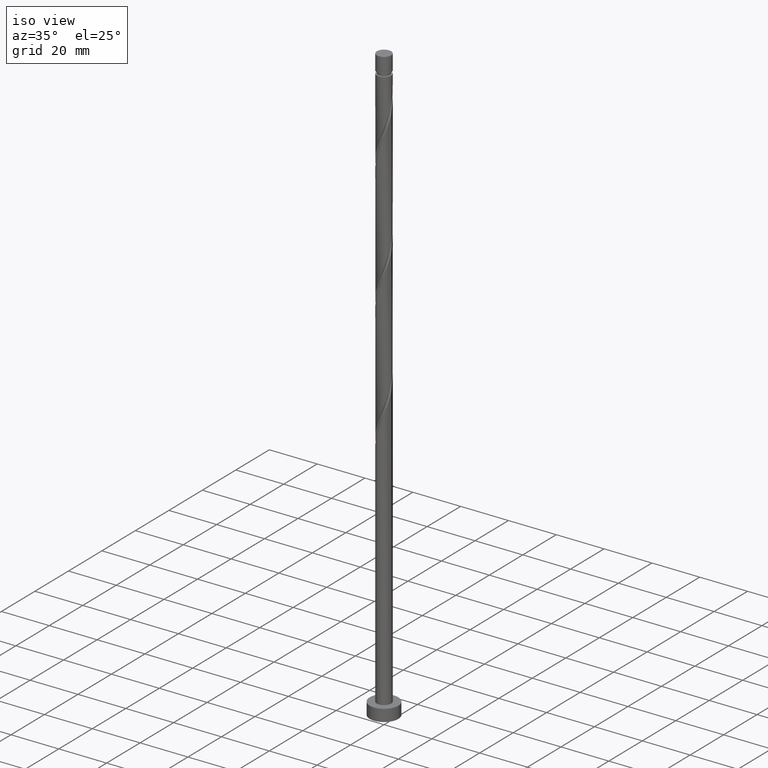
[diagram: clean part render]
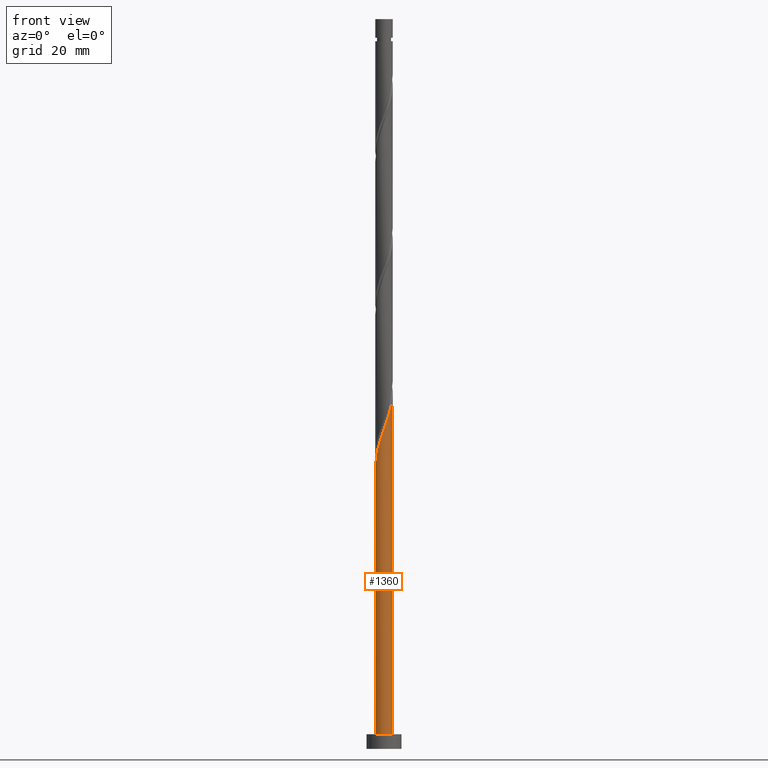
[diagram: tour spotlight — one face highlighted and labeled with its STEP entity id]
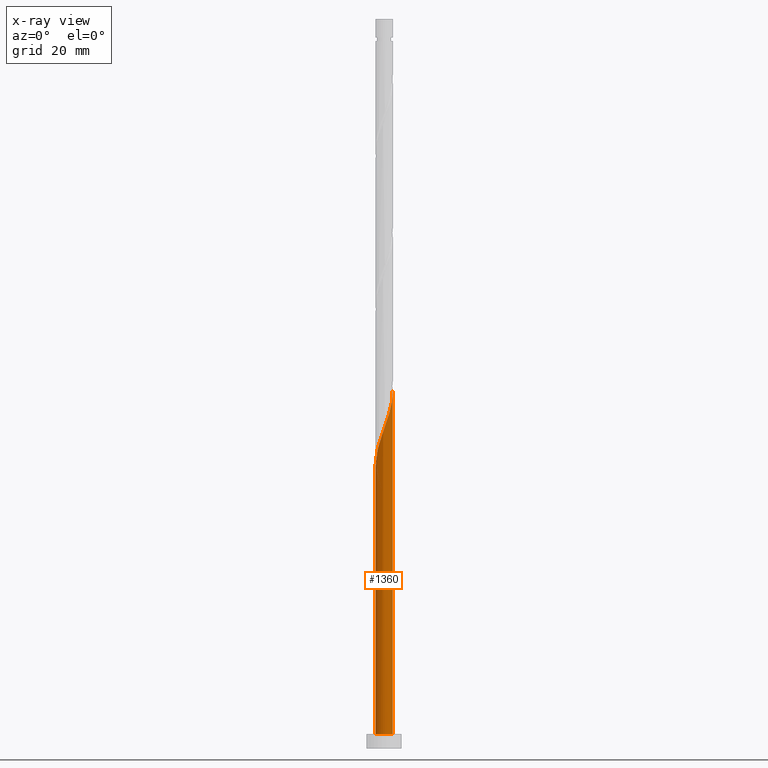
[diagram: x-ray of the same camera — body ghosted, this tour face saturated]
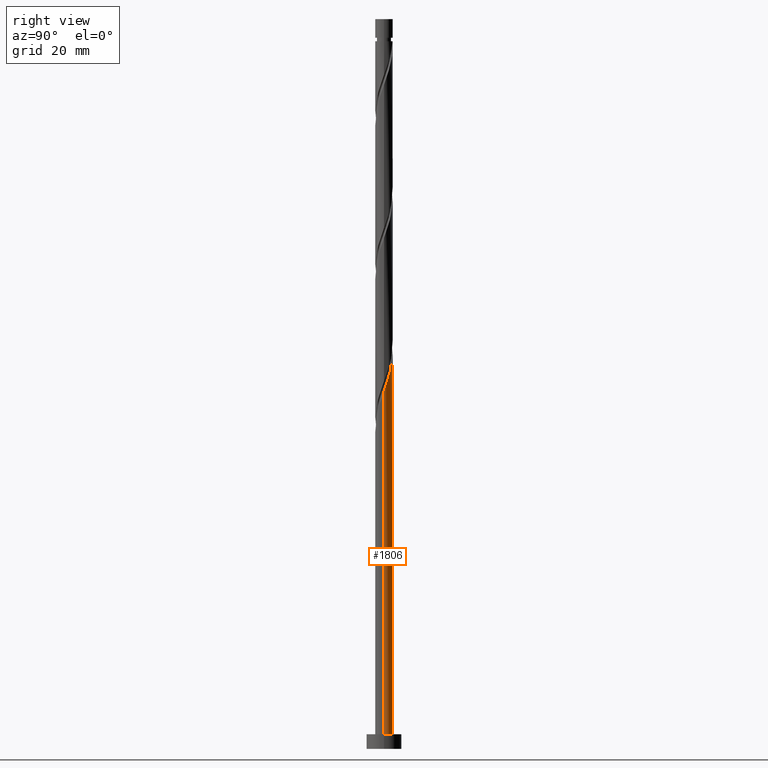
[diagram: tour spotlight — one face highlighted and labeled with its STEP entity id]
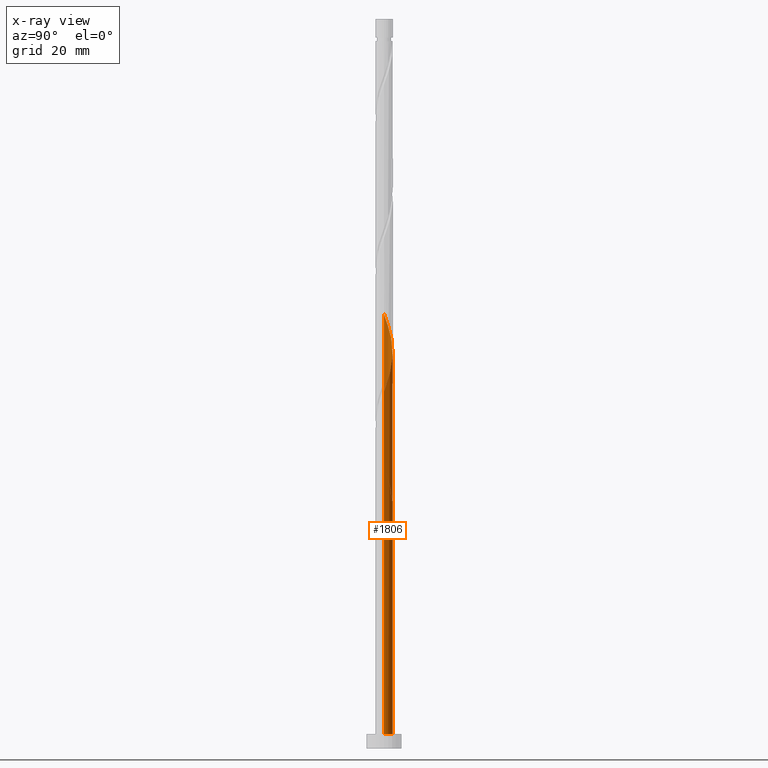
[diagram: x-ray of the same camera — body ghosted, this tour face saturated]
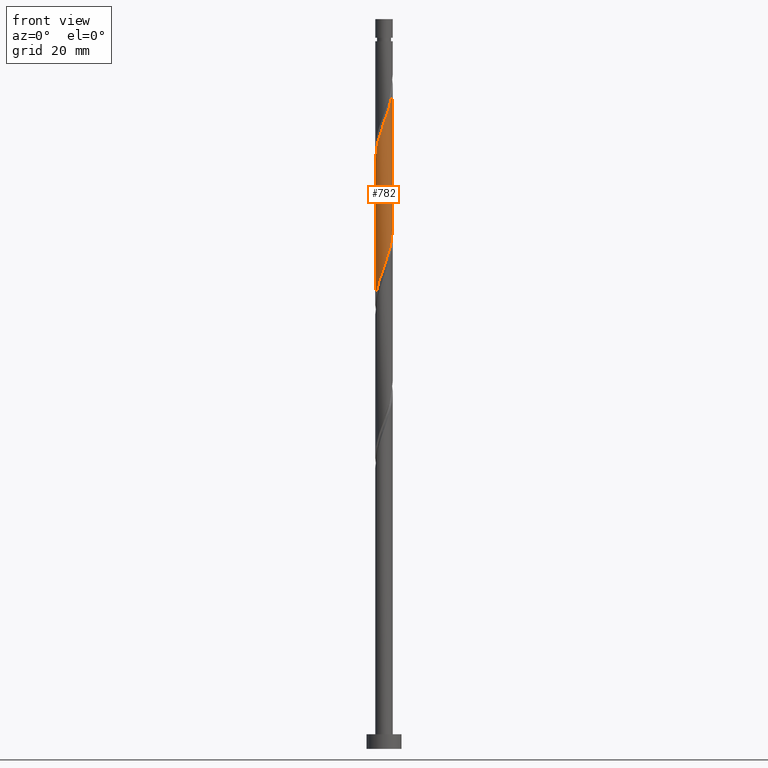
[diagram: tour spotlight — one face highlighted and labeled with its STEP entity id]
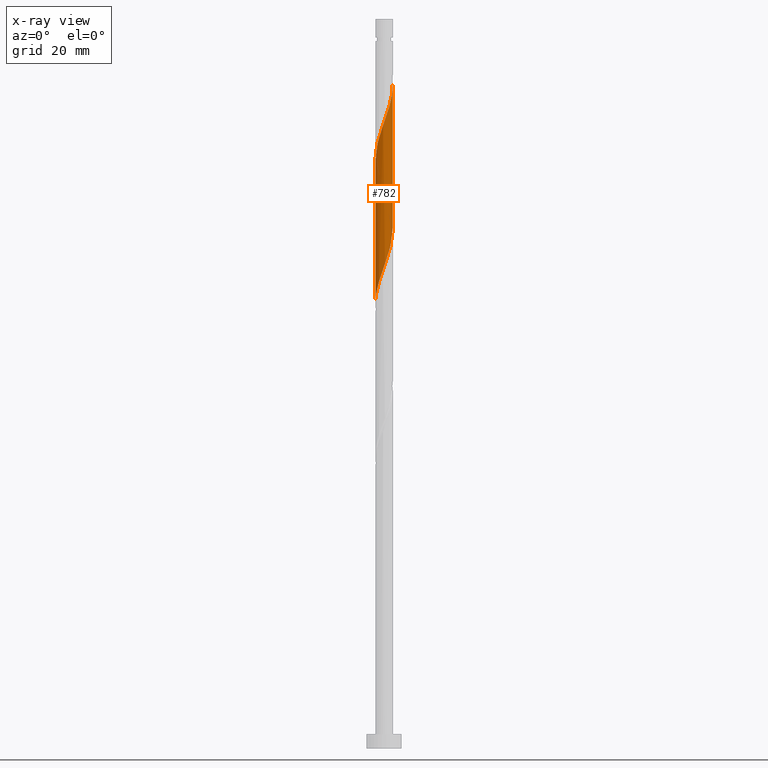
[diagram: x-ray of the same camera — body ghosted, this tour face saturated]
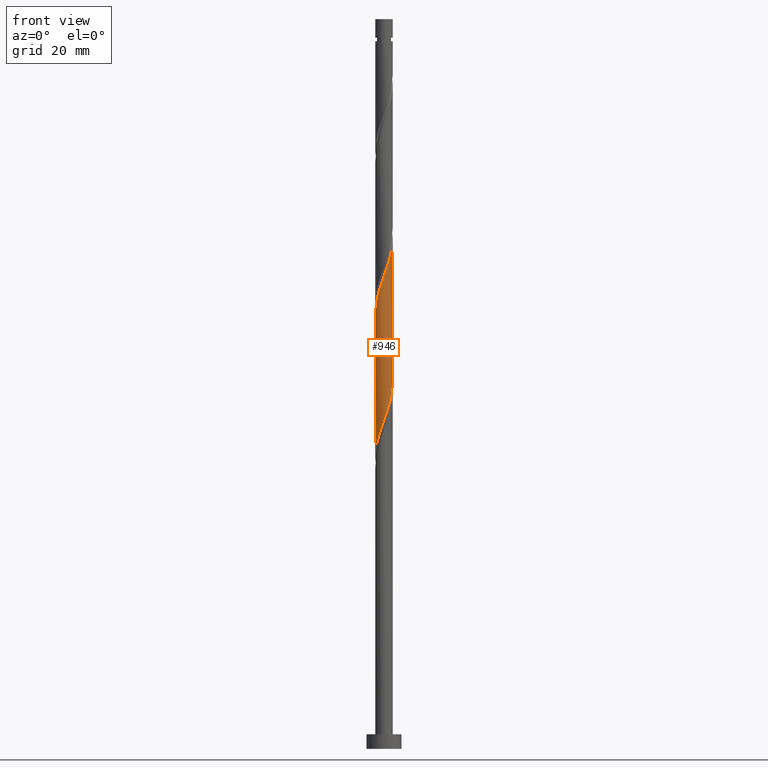
[diagram: tour spotlight — one face highlighted and labeled with its STEP entity id]
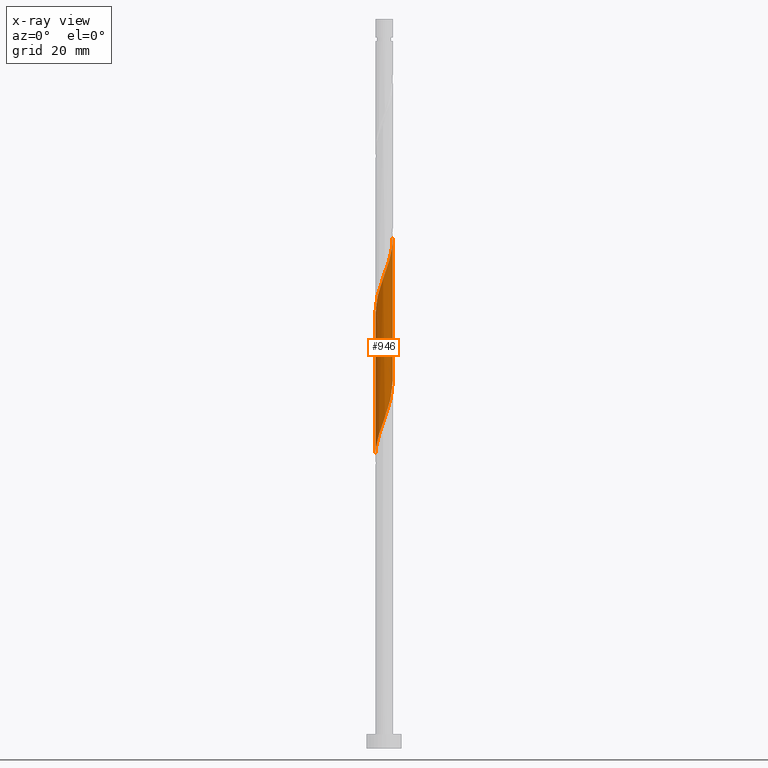
[diagram: x-ray of the same camera — body ghosted, this tour face saturated]
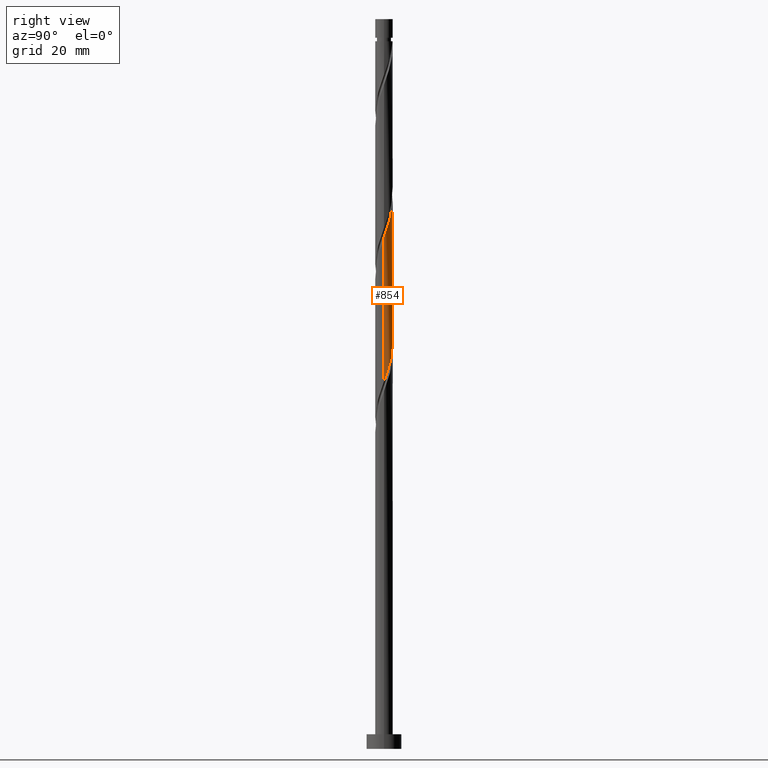
[diagram: tour spotlight — one face highlighted and labeled with its STEP entity id]
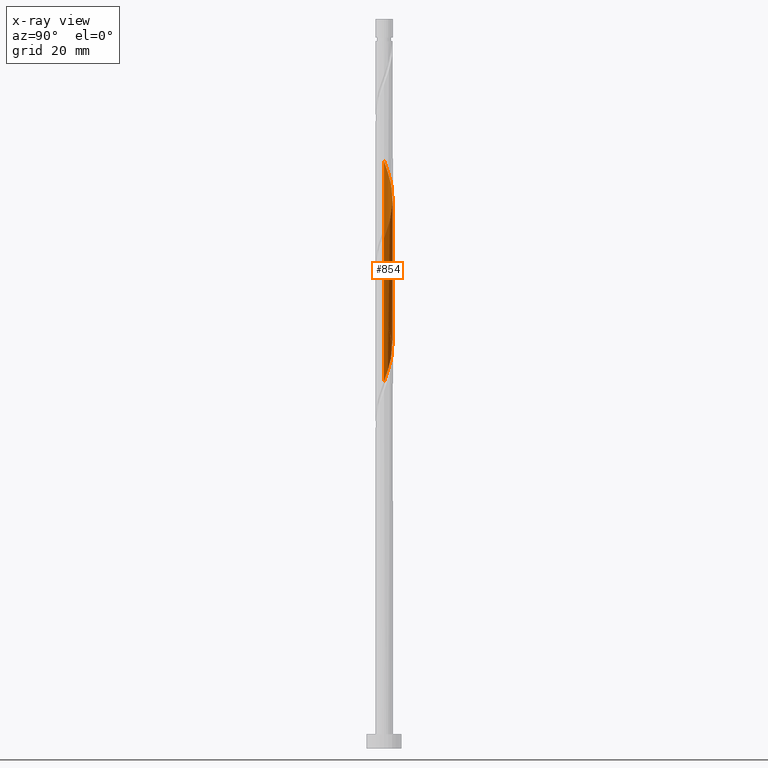
[diagram: x-ray of the same camera — body ghosted, this tour face saturated]
A machine part: a face-by-face anatomy tour. The part has 21 B-rep faces; the first image is the clean iso view, then the 5 largest visible faces are spotlighted one at a time (largest first), each with its STEP entity span.

Face 1 — front view, entity #1360. An x-ray twin of the same camera follows (body ghosted, this face saturated) — the face is partly hidden behind the body. In plain terms, the highlighted cylindrical surface (edge-blend (fillet) strip) has radius 3 mm, axis along (-0, -0, -1).
Definition (entity closure, byte-faithful):
#13 = VERTEX_POINT ( 'NONE', #707 ) ;
#22 = CARTESIAN_POINT ( 'NONE',  ( 3.000000000000006217, -0.03609869149916963144, 122.5011718185005378 ) ) ;
#41 = CARTESIAN_POINT ( 'NONE',  ( 0.5969924622639732892, -2.940000000000005720, 111.1510515846316736 ) ) ;
#50 = CARTESIAN_POINT ( 'NONE',  ( 2.907873793385207239, -0.7377465701333737469, 120.5260515846317020 ) ) ;
#74 = LINE ( 'NONE', #126, #1429 ) ;
#84 = AXIS2_PLACEMENT_3D ( 'NONE', #578, #588, #1891 ) ;
#87 = CIRCLE ( 'NONE', #145, 3.000000000000000444 ) ;
#126 = CARTESIAN_POINT ( 'NONE',  ( -3.000000000000000444, 0.000000000000000000, 250.0000000000000000 ) ) ;
#145 = AXIS2_PLACEMENT_3D ( 'NONE', #279, #1469, #1038 ) ;
#161 = CARTESIAN_POINT ( 'NONE',  ( -1.667239772048623392, -2.516856822501210456, 104.5885515846316594 ) ) ;
#179 = CARTESIAN_POINT ( 'NONE',  ( -0.4101078809741741105, -2.990997868343358235, 108.3385515846316736 ) ) ;
#279 = CARTESIAN_POINT ( 'NONE',  ( 0.000000000000000000, 0.000000000000000000, 5.000000000000000000 ) ) ;
#303 = DIRECTION ( 'NONE',  ( -0.000000000000000000, -0.000000000000000000, -1.000000000000000000 ) ) ;
#322 = CARTESIAN_POINT ( 'NONE',  ( 3.000000000000006661, -2.761268101482318893E-16, 122.6015345067256419 ) ) ;
#323 = CARTESIAN_POINT ( 'NONE',  ( -0.7377465701333735248, -2.907873793385207239, 107.4010515846316736 ) ) ;
#334 = CARTESIAN_POINT ( 'NONE',  ( 1.813489815877872946, -2.389823149881026509, 114.9010515846316878 ) ) ;
#377 = VERTEX_POINT ( 'NONE', #322 ) ;
#413 = CARTESIAN_POINT ( 'NONE',  ( -3.000000000000004885, -0.3015113445777667378, 97.18980558568921424 ) ) ;
#422 = CARTESIAN_POINT ( 'NONE',  ( -2.594154378914897308, -1.544221415739433612, 100.8385515846316451 ) ) ;
#431 = EDGE_CURVE ( 'NONE', #377, #1574, #459, .T. ) ;
#459 = LINE ( 'NONE', #1048, #1546 ) ;
#532 = VERTEX_POINT ( 'NONE', #1120 ) ;
#578 = CARTESIAN_POINT ( 'NONE',  ( 0.000000000000000000, 0.000000000000000000, 250.0000000000000000 ) ) ;
#580 = CARTESIAN_POINT ( 'NONE',  ( -2.872735104178516075, -0.9282509055703004330, 98.96355158463167356 ) ) ;
#588 = DIRECTION ( 'NONE',  ( -0.000000000000000000, -0.000000000000000000, -1.000000000000000000 ) ) ;
#640 = CARTESIAN_POINT ( 'NONE',  ( 0.9282509055703003220, -2.872735104178516075, 112.0885515846316878 ) ) ;
#650 = ORIENTED_EDGE ( 'NONE', *, *, #704, .T. ) ;
#704 = EDGE_CURVE ( 'NONE', #13, #1574, #87, .T. ) ;
#707 = CARTESIAN_POINT ( 'NONE',  ( -3.000000000000000444, 0.000000000000000000, 5.000000000000000000 ) ) ;
#760 = CARTESIAN_POINT ( 'NONE',  ( 2.999131382082426356, -0.07218693100826405196, 122.4010515846316736 ) ) ;
#790 = CARTESIAN_POINT ( 'NONE',  ( -0.07218693100826384379, -2.999131382082426356, 109.2760515846316736 ) ) ;
#800 = CARTESIAN_POINT ( 'NONE',  ( 2.670803270464134016, -1.366312515670598415, 118.6510515846317020 ) ) ;
#934 = CARTESIAN_POINT ( 'NONE',  ( -1.926365846447889663, -2.299807519258761701, 103.6510515846317162 ) ) ;
#1021 = CARTESIAN_POINT ( 'NONE',  ( -2.389823149881026509, -1.813489815877872946, 101.7760515846316878 ) ) ;
#1038 = DIRECTION ( 'NONE',  ( 1.000000000000000000, 0.000000000000000000, 0.000000000000000000 ) ) ;
#1048 = CARTESIAN_POINT ( 'NONE',  ( 3.000000000000000444, 3.673940397442060361E-16, 250.0000000000000000 ) ) ;
#1060 = CARTESIAN_POINT ( 'NONE',  ( 2.082758216016311614, -2.185491920847154823, 115.8385515846316594 ) ) ;
#1072 = ORIENTED_EDGE ( 'NONE', *, *, #1241, .T. ) ;
#1120 = CARTESIAN_POINT ( 'NONE',  ( -3.000000000000006661, -7.462886760763024534E-17, 96.35153450672565612 ) ) ;
#1122 = ORIENTED_EDGE ( 'NONE', *, *, #431, .F. ) ;
#1158 = CARTESIAN_POINT ( 'NONE',  ( -3.000000000000006661, -7.462886760763025767E-17, 96.35153450672565612 ) ) ;
#1167 = CARTESIAN_POINT ( 'NONE',  ( -2.733444741546708467, -1.236236160654867522, 99.90105158463168777 ) ) ;
#1213 = CARTESIAN_POINT ( 'NONE',  ( -1.065385259292573217, -2.824749718427056688, 106.4635515846316878 ) ) ;
#1233 = CARTESIAN_POINT ( 'NONE',  ( 1.236236160654867078, -2.733444741546708467, 113.0260515846316878 ) ) ;
#1241 = EDGE_CURVE ( 'NONE', #532, #13, #74, .T. ) ;
#1243 = CARTESIAN_POINT ( 'NONE',  ( 2.990997868343357791, -0.4101078809741742215, 121.4635515846316594 ) ) ;
#1310 = EDGE_LOOP ( 'NONE', ( #1122, #1648, #1072, #650 ) ) ;
#1352 = CARTESIAN_POINT ( 'NONE',  ( 3.000000000000006661, -2.761268101482318893E-16, 122.6015345067256419 ) ) ;
#1360 = ADVANCED_FACE ( 'NONE', ( #1741 ), #1460, .T. ) ;
#1380 = CARTESIAN_POINT ( 'NONE',  ( 0.2657340189576462008, -3.007264895821492701, 110.2135515846316878 ) ) ;
#1391 = CARTESIAN_POINT ( 'NONE',  ( 2.824749718427056688, -1.065385259292573217, 119.5885515846316594 ) ) ;
#1429 = VECTOR ( 'NONE', #1905, 1000.000000000000000 ) ;
#1460 = CYLINDRICAL_SURFACE ( 'NONE', #84, 3.000000000000000444 ) ;
#1469 = DIRECTION ( 'NONE',  ( 0.000000000000000000, 0.000000000000000000, 1.000000000000000000 ) ) ;
#1493 = CARTESIAN_POINT ( 'NONE',  ( 2.516856822501210456, -1.667239772048623614, 117.7135515846316451 ) ) ;
#1529 = CARTESIAN_POINT ( 'NONE',  ( 2.299807519258761257, -1.926365846447889663, 116.7760515846317020 ) ) ;
#1546 = VECTOR ( 'NONE', #303, 1000.000000000000000 ) ;
#1574 = VERTEX_POINT ( 'NONE', #1810 ) ;
#1615 = CARTESIAN_POINT ( 'NONE',  ( -2.185491920847154823, -2.082758216016311614, 102.7135515846316736 ) ) ;
#1648 = ORIENTED_EDGE ( 'NONE', *, *, #1651, .F. ) ;
#1651 = EDGE_CURVE ( 'NONE', #532, #377, #1724, .T. ) ;
#1686 = CARTESIAN_POINT ( 'NONE',  ( -1.366312515670598415, -2.670803270464134016, 105.5260515846317020 ) ) ;
#1724 =( BOUNDED_CURVE ( )  B_SPLINE_CURVE ( 2, ( #1158, #413, #1907, #580, #1167, #422, #1021, #1615, #934, #161, #1686, #1213, #323, #179, #790, #1380, #41, #640, #1233, #1821, #334, #1060, #1529, #1493, #800, #1391, #50, #1243, #760, #22, #1352 ),
 .UNSPECIFIED., .F., .T. ) 
 B_SPLINE_CURVE_WITH_KNOTS ( ( 3, 2, 2, 2, 2, 2, 2, 2, 2, 2, 2, 2, 2, 2, 2, 3 ),
 ( 0.05453034012992214602, 0.06250000000000000000, 0.07142857142857139685, 0.08035714285714290472, 0.08928571428571430157, 0.09821428571428569843, 0.1071428571428570953, 0.1160714285714286031, 0.1250000000000000000, 0.1339285714285713969, 0.1428571428571429047, 0.1517857142857143016, 0.1607142857142856984, 0.1696428571428570953, 0.1785714285714286031, 0.1795303401299221391 ),
 .UNSPECIFIED. ) 
 CURVE ( )  GEOMETRIC_REPRESENTATION_ITEM ( )  RATIONAL_B_SPLINE_CURVE ( ( 0.9079949616362101850, 0.9039886423360735668, 0.9090909090909401469, 0.9033747362666152414, 0.9090909090909401469, 0.9033747362666152414, 0.9090909090909401469, 0.9033747362666152414, 0.9090909090909401469, 0.9033747362666152414, 0.9090909090909401469, 0.9033747362666152414, 0.9090909090909401469, 0.9033747362666152414, 0.9090909090909401469, 0.9033747362666152414, 0.9090909090909401469, 0.9033747362666152414, 0.9090909090909401469, 0.9033747362666152414, 0.9090909090909401469, 0.9033747362666152414, 0.9090909090909401469, 0.9033747362666152414, 0.9090909090909401469, 0.9033747362666152414, 0.9090909090909401469, 0.9033747362666152414, 0.9090909090909401469, 0.9084770030214819325, 0.9079949616362101850 ) ) 
 REPRESENTATION_ITEM ( '' )  );
#1741 = FACE_OUTER_BOUND ( 'NONE', #1310, .T. ) ;
#1810 = CARTESIAN_POINT ( 'NONE',  ( 3.000000000000000444, 3.673940397442060361E-16, 5.000000000000000000 ) ) ;
#1821 = CARTESIAN_POINT ( 'NONE',  ( 1.544221415739433390, -2.594154378914898196, 113.9635515846317162 ) ) ;
#1891 = DIRECTION ( 'NONE',  ( -1.000000000000000000, 0.000000000000000000, 0.000000000000000000 ) ) ;
#1905 = DIRECTION ( 'NONE',  ( -0.000000000000000000, -0.000000000000000000, -1.000000000000000000 ) ) ;
#1907 = CARTESIAN_POINT ( 'NONE',  ( -2.940000000000005720, -0.5969924622639732892, 98.02605158463165935 ) ) ;

Face 2 — right view, entity #1806. An x-ray twin of the same camera follows (body ghosted, this face saturated) — the face is partly hidden behind the body. In plain terms, the highlighted cylindrical surface (edge-blend (fillet) strip) has radius 3 mm, axis along (-0, -0, -1).
Definition (entity closure, byte-faithful):
#13 = VERTEX_POINT ( 'NONE', #707 ) ;
#29 = CARTESIAN_POINT ( 'NONE',  ( 0.4101078809741743880, 2.990997868343357791, 134.5885515846316309 ) ) ;
#38 = CARTESIAN_POINT ( 'NONE',  ( 3.000000000000005329, 0.3015113445777660717, 123.4398055856892000 ) ) ;
#57 = CARTESIAN_POINT ( 'NONE',  ( -0.5969924622639730671, 2.940000000000005720, 137.4010515846316594 ) ) ;
#58 = EDGE_CURVE ( 'NONE', #377, #231, #712, .T. ) ;
#69 = CARTESIAN_POINT ( 'NONE',  ( 0.000000000000000000, 0.000000000000000000, 250.0000000000000000 ) ) ;
#70 = VERTEX_POINT ( 'NONE', #217 ) ;
#74 = LINE ( 'NONE', #126, #1429 ) ;
#75 =( BOUNDED_CURVE ( )  B_SPLINE_CURVE ( 2, ( #1566, #1139, #531, #954, #1573, #1121, #237, #1548, #844, #1695, #1099, #1435, #95, #1263, #1289, #1882, #1254 ),
 .UNSPECIFIED., .F., .T. ) 
 B_SPLINE_CURVE_WITH_KNOTS ( ( 3, 2, 2, 2, 2, 2, 2, 2, 3 ),
 ( 0.9295303401299220836, 0.9375000000000000000, 0.9464285714285713969, 0.9553571428571429047, 0.9642857142857143016, 0.9732142857142856984, 0.9821428571428570953, 0.9910714285714286031, 1.000000000000000000 ),
 .UNSPECIFIED. ) 
 CURVE ( )  GEOMETRIC_REPRESENTATION_ITEM ( )  RATIONAL_B_SPLINE_CURVE ( ( 0.9079949616362028575, 0.9039886423360661283, 0.9090909090909328194, 0.9033747362666078029, 0.9090909090909328194, 0.9033747362666078029, 0.9090909090909328194, 0.9033747362666078029, 0.9090909090909328194, 0.9033747362666078029, 0.9090909090909328194, 0.9033747362666078029, 0.9090909090909328194, 0.9033747362666078029, 0.9090909090909328194, 0.9033747362666078029, 0.9090909090909328194 ) ) 
 REPRESENTATION_ITEM ( '' )  );
#82 = CARTESIAN_POINT ( 'NONE',  ( -1.813489815877873168, 2.389823149881026509, 88.65105158463167356 ) ) ;
#95 = CARTESIAN_POINT ( 'NONE',  ( -0.7377465701333714154, 2.907873793385202799, 88.65105158463170199 ) ) ;
#100 = EDGE_CURVE ( 'NONE', #996, #532, #264, .T. ) ;
#126 = CARTESIAN_POINT ( 'NONE',  ( -3.000000000000000444, 0.000000000000000000, 250.0000000000000000 ) ) ;
#128 = ORIENTED_EDGE ( 'NONE', *, *, #1241, .F. ) ;
#150 = DIRECTION ( 'NONE',  ( 0.000000000000000000, 0.000000000000000000, 1.000000000000000000 ) ) ;
#157 = CARTESIAN_POINT ( 'NONE',  ( -2.999131382082426356, 0.07218693100826371889, 148.6510515846317162 ) ) ;
#196 = CARTESIAN_POINT ( 'NONE',  ( 2.389823149881026954, 1.813489815877872724, 128.0260515846317162 ) ) ;
#217 = CARTESIAN_POINT ( 'NONE',  ( 0.5969924622639739553, 2.940000000000000835, 84.90105158463168777 ) ) ;
#221 = DIRECTION ( 'NONE',  ( -0.000000000000000000, -0.000000000000000000, -1.000000000000000000 ) ) ;
#227 = CARTESIAN_POINT ( 'NONE',  ( -2.990997868343358235, 0.4101078809741738329, 95.21355158463167356 ) ) ;
#231 = VERTEX_POINT ( 'NONE', #1351 ) ;
#237 = CARTESIAN_POINT ( 'NONE',  ( -2.389823149881022069, 1.813489815877870504, 94.27605158463168777 ) ) ;
#238 = VERTEX_POINT ( 'NONE', #878 ) ;
#264 =( BOUNDED_CURVE ( )  B_SPLINE_CURVE ( 2, ( #1117, #687, #1555, #951, #82, #1260, #971, #1417, #517, #1276, #1855, #227, #1867, #827, #678 ),
 .UNSPECIFIED., .F., .T. ) 
 B_SPLINE_CURVE_WITH_KNOTS ( ( 3, 2, 2, 2, 2, 2, 2, 3 ),
 ( 0.000000000000000000, 0.008928571428571396851, 0.01785714285714290472, 0.02678571428571430157, 0.03571428571428569843, 0.04464285714285709528, 0.05357142857142860315, 0.05453034012992214602 ),
 .UNSPECIFIED. ) 
 CURVE ( )  GEOMETRIC_REPRESENTATION_ITEM ( )  RATIONAL_B_SPLINE_CURVE ( ( 0.9090909090909401469, 0.9033747362666152414, 0.9090909090909401469, 0.9033747362666152414, 0.9090909090909401469, 0.9033747362666152414, 0.9090909090909401469, 0.9033747362666152414, 0.9090909090909401469, 0.9033747362666152414, 0.9090909090909401469, 0.9033747362666152414, 0.9090909090909401469, 0.9084770030214819325, 0.9079949616362101850 ) ) 
 REPRESENTATION_ITEM ( '' )  );
#301 = CARTESIAN_POINT ( 'NONE',  ( -2.299807519258761701, 1.926365846447889663, 143.0260515846316878 ) ) ;
#303 = DIRECTION ( 'NONE',  ( -0.000000000000000000, -0.000000000000000000, -1.000000000000000000 ) ) ;
#322 = CARTESIAN_POINT ( 'NONE',  ( 3.000000000000006661, -2.761268101482318893E-16, 122.6015345067256419 ) ) ;
#331 = CARTESIAN_POINT ( 'NONE',  ( 2.940000000000005720, 0.5969924622639731782, 124.2760515846316878 ) ) ;
#341 = CARTESIAN_POINT ( 'NONE',  ( 2.733444741546708467, 1.236236160654867078, 126.1510515846316594 ) ) ;
#377 = VERTEX_POINT ( 'NONE', #322 ) ;
#431 = EDGE_CURVE ( 'NONE', #377, #1574, #459, .T. ) ;
#457 = CARTESIAN_POINT ( 'NONE',  ( -1.236236160654867522, 2.733444741546707579, 139.2760515846316309 ) ) ;
#458 = CARTESIAN_POINT ( 'NONE',  ( 0.000000000000000000, 0.000000000000000000, 84.90105158463168777 ) ) ;
#459 = LINE ( 'NONE', #1048, #1546 ) ;
#483 = ORIENTED_EDGE ( 'NONE', *, *, #1350, .T. ) ;
#487 = CARTESIAN_POINT ( 'NONE',  ( 2.872735104178516075, 0.9282509055703001000, 125.2135515846316594 ) ) ;
#508 = CYLINDRICAL_SURFACE ( 'NONE', #1402, 3.000000000000000444 ) ;
#517 = CARTESIAN_POINT ( 'NONE',  ( -2.670803270464134904, 1.366312515670598415, 92.40105158463167356 ) ) ;
#531 = CARTESIAN_POINT ( 'NONE',  ( -2.940000000000000391, 0.5969924622639731782, 98.02605158463167356 ) ) ;
#532 = VERTEX_POINT ( 'NONE', #1120 ) ;
#539 = CARTESIAN_POINT ( 'NONE',  ( -3.000000000000000444, 0.000000000000000000, 250.0000000000000000 ) ) ;
#587 = DIRECTION ( 'NONE',  ( -1.000000000000000000, 0.000000000000000000, 0.000000000000000000 ) ) ;
#620 = CARTESIAN_POINT ( 'NONE',  ( 1.065385259292573217, 2.824749718427055800, 132.7135515846316878 ) ) ;
#625 = AXIS2_PLACEMENT_3D ( 'NONE', #1039, #150, #1914 ) ;
#647 = CARTESIAN_POINT ( 'NONE',  ( 2.185491920847155267, 2.082758216016311170, 128.9635515846316878 ) ) ;
#658 = CARTESIAN_POINT ( 'NONE',  ( -0.9282509055703006551, 2.872735104178516075, 138.3385515846316594 ) ) ;
#662 = FACE_OUTER_BOUND ( 'NONE', #1362, .T. ) ;
#678 = CARTESIAN_POINT ( 'NONE',  ( -3.000000000000006661, -7.462886760763025767E-17, 96.35153450672565612 ) ) ;
#687 = CARTESIAN_POINT ( 'NONE',  ( -0.9282509055703006551, 2.872735104178516075, 85.83855158463167356 ) ) ;
#707 = CARTESIAN_POINT ( 'NONE',  ( -3.000000000000000444, 0.000000000000000000, 5.000000000000000000 ) ) ;
#712 =( BOUNDED_CURVE ( )  B_SPLINE_CURVE ( 2, ( #1809, #38, #331, #487, #341, #1069, #196, #647, #1239, #1398, #1829, #620, #1654, #29, #809, #1359, #57, #658, #457, #1046, #1646, #1507, #301, #907, #915, #1664, #777, #1500, #157, #924, #1516 ),
 .UNSPECIFIED., .F., .T. ) 
 B_SPLINE_CURVE_WITH_KNOTS ( ( 3, 2, 2, 2, 2, 2, 2, 2, 2, 2, 2, 2, 2, 2, 2, 3 ),
 ( 0.1795303401299221391, 0.1875000000000000000, 0.1964285714285713969, 0.2053571428571429047, 0.2142857142857143016, 0.2232142857142856984, 0.2321428571428570953, 0.2410714285714286031, 0.2500000000000000000, 0.2589285714285713969, 0.2678571428571429047, 0.2767857142857143016, 0.2857142857142856984, 0.2946428571428570953, 0.3035714285714286031, 0.3045303401299221391 ),
 .UNSPECIFIED. ) 
 CURVE ( )  GEOMETRIC_REPRESENTATION_ITEM ( )  RATIONAL_B_SPLINE_CURVE ( ( 0.9079949616362101850, 0.9039886423360735668, 0.9090909090909401469, 0.9033747362666152414, 0.9090909090909401469, 0.9033747362666152414, 0.9090909090909401469, 0.9033747362666152414, 0.9090909090909401469, 0.9033747362666152414, 0.9090909090909401469, 0.9033747362666152414, 0.9090909090909401469, 0.9033747362666152414, 0.9090909090909401469, 0.9033747362666152414, 0.9090909090909401469, 0.9033747362666152414, 0.9090909090909401469, 0.9033747362666152414, 0.9090909090909401469, 0.9033747362666152414, 0.9090909090909401469, 0.9033747362666152414, 0.9090909090909401469, 0.9033747362666152414, 0.9090909090909401469, 0.9033747362666152414, 0.9090909090909401469, 0.9084770030214819325, 0.9079949616362101850 ) ) 
 REPRESENTATION_ITEM ( '' )  );
#729 = ORIENTED_EDGE ( 'NONE', *, *, #1745, .F. ) ;
#758 = DIRECTION ( 'NONE',  ( -1.000000000000000000, 0.000000000000000000, 0.000000000000000000 ) ) ;
#777 = CARTESIAN_POINT ( 'NONE',  ( -2.907873793385208128, 0.7377465701333734138, 146.7760515846316594 ) ) ;
#809 = CARTESIAN_POINT ( 'NONE',  ( 0.07218693100826439890, 2.999131382082425912, 135.5260515846316878 ) ) ;
#827 = CARTESIAN_POINT ( 'NONE',  ( -3.000000000000006217, 0.03609869149916902081, 96.25117181850055204 ) ) ;
#840 = AXIS2_PLACEMENT_3D ( 'NONE', #458, #1819, #758 ) ;
#844 = CARTESIAN_POINT ( 'NONE',  ( -1.926365846447885888, 2.299807519258759037, 92.40105158463170199 ) ) ;
#878 = CARTESIAN_POINT ( 'NONE',  ( -3.000000000000000888, 9.030092980523331732E-16, 99.70056866253777628 ) ) ;
#907 = CARTESIAN_POINT ( 'NONE',  ( -2.516856822501210456, 1.667239772048623392, 143.9635515846316878 ) ) ;
#915 = CARTESIAN_POINT ( 'NONE',  ( -2.670803270464134904, 1.366312515670598415, 144.9010515846316878 ) ) ;
#924 = CARTESIAN_POINT ( 'NONE',  ( -3.000000000000006217, 0.03609869149916929143, 148.7511718185005236 ) ) ;
#951 = CARTESIAN_POINT ( 'NONE',  ( -1.544221415739433834, 2.594154378914897308, 87.71355158463167356 ) ) ;
#954 = CARTESIAN_POINT ( 'NONE',  ( -2.872735104178512078, 0.9282509055702999889, 97.08855158463168777 ) ) ;
#971 = CARTESIAN_POINT ( 'NONE',  ( -2.299807519258761701, 1.926365846447889663, 90.52605158463168777 ) ) ;
#988 = VECTOR ( 'NONE', #221, 1000.000000000000000 ) ;
#996 = VERTEX_POINT ( 'NONE', #1285 ) ;
#1039 = CARTESIAN_POINT ( 'NONE',  ( 0.000000000000000000, 0.000000000000000000, 5.000000000000000000 ) ) ;
#1046 = CARTESIAN_POINT ( 'NONE',  ( -1.544221415739433834, 2.594154378914897308, 140.2135515846316025 ) ) ;
#1048 = CARTESIAN_POINT ( 'NONE',  ( 3.000000000000000444, 3.673940397442060361E-16, 250.0000000000000000 ) ) ;
#1069 = CARTESIAN_POINT ( 'NONE',  ( 2.594154378914898196, 1.544221415739433168, 127.0885515846316736 ) ) ;
#1099 = CARTESIAN_POINT ( 'NONE',  ( -1.366312515670595085, 2.670803270464129575, 90.52605158463171620 ) ) ;
#1117 = CARTESIAN_POINT ( 'NONE',  ( -0.5969924622639730671, 2.940000000000005720, 84.90105158463168777 ) ) ;
#1120 = CARTESIAN_POINT ( 'NONE',  ( -3.000000000000006661, -7.462886760763024534E-17, 96.35153450672565612 ) ) ;
#1121 = CARTESIAN_POINT ( 'NONE',  ( -2.594154378914892867, 1.544221415739432057, 95.21355158463168777 ) ) ;
#1139 = CARTESIAN_POINT ( 'NONE',  ( -3.000000000000000444, 0.3015113445777647949, 98.86229758357416131 ) ) ;
#1200 = ORIENTED_EDGE ( 'NONE', *, *, #58, .F. ) ;
#1239 = CARTESIAN_POINT ( 'NONE',  ( 1.926365846447889663, 2.299807519258761257, 129.9010515846316594 ) ) ;
#1241 = EDGE_CURVE ( 'NONE', #532, #13, #74, .T. ) ;
#1254 = CARTESIAN_POINT ( 'NONE',  ( 0.5969924622639739553, 2.940000000000001279, 84.90105158463168777 ) ) ;
#1260 = CARTESIAN_POINT ( 'NONE',  ( -2.082758216016311614, 2.185491920847154823, 89.58855158463168777 ) ) ;
#1263 = CARTESIAN_POINT ( 'NONE',  ( -0.4101078809741725562, 2.990997868343353794, 87.71355158463168777 ) ) ;
#1272 = LINE ( 'NONE', #539, #988 ) ;
#1276 = CARTESIAN_POINT ( 'NONE',  ( -2.824749718427056688, 1.065385259292572995, 93.33855158463168777 ) ) ;
#1285 = CARTESIAN_POINT ( 'NONE',  ( -0.5969924622639729561, 2.940000000000005720, 84.90105158463168777 ) ) ;
#1289 = CARTESIAN_POINT ( 'NONE',  ( -0.07218693100826287234, 2.999131382082421027, 86.77605158463171620 ) ) ;
#1327 = ORIENTED_EDGE ( 'NONE', *, *, #100, .F. ) ;
#1350 = EDGE_CURVE ( 'NONE', #1574, #13, #1576, .T. ) ;
#1351 = CARTESIAN_POINT ( 'NONE',  ( -3.000000000000006661, -7.462886760763024534E-17, 148.8515345067256419 ) ) ;
#1359 = CARTESIAN_POINT ( 'NONE',  ( -0.2657340189576458123, 3.007264895821492701, 136.4635515846316878 ) ) ;
#1362 = EDGE_LOOP ( 'NONE', ( #1200, #1883, #483, #128, #1327, #1636, #729, #1860 ) ) ;
#1398 = CARTESIAN_POINT ( 'NONE',  ( 1.667239772048623614, 2.516856822501210456, 130.8385515846316878 ) ) ;
#1402 = AXIS2_PLACEMENT_3D ( 'NONE', #69, #1412, #587 ) ;
#1412 = DIRECTION ( 'NONE',  ( -0.000000000000000000, -0.000000000000000000, -1.000000000000000000 ) ) ;
#1417 = CARTESIAN_POINT ( 'NONE',  ( -2.516856822501210456, 1.667239772048623392, 91.46355158463163093 ) ) ;
#1429 = VECTOR ( 'NONE', #1905, 1000.000000000000000 ) ;
#1435 = CARTESIAN_POINT ( 'NONE',  ( -1.065385259292570330, 2.824749718427053136, 89.58855158463168777 ) ) ;
#1461 = EDGE_CURVE ( 'NONE', #996, #70, #1674, .T. ) ;
#1500 = CARTESIAN_POINT ( 'NONE',  ( -2.990997868343358235, 0.4101078809741738329, 147.7135515846317162 ) ) ;
#1507 = CARTESIAN_POINT ( 'NONE',  ( -2.082758216016311614, 2.185491920847154823, 142.0885515846316594 ) ) ;
#1516 = CARTESIAN_POINT ( 'NONE',  ( -3.000000000000006661, -7.462886760763025767E-17, 148.8515345067256419 ) ) ;
#1546 = VECTOR ( 'NONE', #303, 1000.000000000000000 ) ;
#1548 = CARTESIAN_POINT ( 'NONE',  ( -2.185491920847151270, 2.082758216016308950, 93.33855158463170199 ) ) ;
#1555 = CARTESIAN_POINT ( 'NONE',  ( -1.236236160654867522, 2.733444741546707579, 86.77605158463173041 ) ) ;
#1566 = CARTESIAN_POINT ( 'NONE',  ( -3.000000000000000888, 9.030092980523331732E-16, 99.70056866253777628 ) ) ;
#1573 = CARTESIAN_POINT ( 'NONE',  ( -2.733444741546702250, 1.236236160654865968, 96.15105158463168777 ) ) ;
#1574 = VERTEX_POINT ( 'NONE', #1810 ) ;
#1576 = CIRCLE ( 'NONE', #625, 3.000000000000000444 ) ;
#1636 = ORIENTED_EDGE ( 'NONE', *, *, #1461, .T. ) ;
#1646 = CARTESIAN_POINT ( 'NONE',  ( -1.813489815877873168, 2.389823149881026509, 141.1510515846317162 ) ) ;
#1654 = CARTESIAN_POINT ( 'NONE',  ( 0.7377465701333738579, 2.907873793385207239, 133.6510515846316878 ) ) ;
#1664 = CARTESIAN_POINT ( 'NONE',  ( -2.824749718427056688, 1.065385259292572995, 145.8385515846316594 ) ) ;
#1674 = CIRCLE ( 'NONE', #840, 3.000000000000000444 ) ;
#1688 = EDGE_CURVE ( 'NONE', #231, #238, #1272, .T. ) ;
#1695 = CARTESIAN_POINT ( 'NONE',  ( -1.667239772048620505, 2.516856822501207347, 91.46355158463167356 ) ) ;
#1745 = EDGE_CURVE ( 'NONE', #238, #70, #75, .T. ) ;
#1806 = ADVANCED_FACE ( 'NONE', ( #662 ), #508, .T. ) ;
#1809 = CARTESIAN_POINT ( 'NONE',  ( 3.000000000000006661, -2.761268101482318893E-16, 122.6015345067256419 ) ) ;
#1810 = CARTESIAN_POINT ( 'NONE',  ( 3.000000000000000444, 3.673940397442060361E-16, 5.000000000000000000 ) ) ;
#1819 = DIRECTION ( 'NONE',  ( 0.000000000000000000, -0.000000000000000000, -1.000000000000000000 ) ) ;
#1829 = CARTESIAN_POINT ( 'NONE',  ( 1.366312515670598415, 2.670803270464134016, 131.7760515846316594 ) ) ;
#1855 = CARTESIAN_POINT ( 'NONE',  ( -2.907873793385208128, 0.7377465701333734138, 94.27605158463165935 ) ) ;
#1860 = ORIENTED_EDGE ( 'NONE', *, *, #1688, .F. ) ;
#1867 = CARTESIAN_POINT ( 'NONE',  ( -2.999131382082426356, 0.07218693100826371889, 96.15105158463171620 ) ) ;
#1882 = CARTESIAN_POINT ( 'NONE',  ( 0.2657340189576466449, 3.007264895821488260, 85.83855158463168777 ) ) ;
#1883 = ORIENTED_EDGE ( 'NONE', *, *, #431, .T. ) ;
#1905 = DIRECTION ( 'NONE',  ( -0.000000000000000000, -0.000000000000000000, -1.000000000000000000 ) ) ;
#1914 = DIRECTION ( 'NONE',  ( 1.000000000000000000, 0.000000000000000000, 0.000000000000000000 ) ) ;

Face 3 — front view, entity #782. An x-ray twin of the same camera follows (body ghosted, this face saturated) — the face is partly hidden behind the body. In plain terms, the highlighted cylindrical surface (edge-blend (fillet) strip) has radius 3 mm, axis along (-0, -0, -1).
Definition (entity closure, byte-faithful):
#2 = CARTESIAN_POINT ( 'NONE',  ( 1.065385259292570330, -2.824749718427053136, 168.3385515846317446 ) ) ;
#59 = CARTESIAN_POINT ( 'NONE',  ( -3.000000000000006217, 4.556092367445825187E-15, 201.3515345067256987 ) ) ;
#105 = CARTESIAN_POINT ( 'NONE',  ( -1.544221415739432501, -2.594154378914892867, 160.8385515846316594 ) ) ;
#110 = CARTESIAN_POINT ( 'NONE',  ( -3.000000000000002665, -0.3015113445777768408, 202.1898055856892711 ) ) ;
#120 = CARTESIAN_POINT ( 'NONE',  ( 2.733444741546702250, -1.236236160654866190, 174.9010515846316878 ) ) ;
#130 =( BOUNDED_CURVE ( )  B_SPLINE_CURVE ( 2, ( #1309, #591, #1767, #561, #120, #140, #1151, #569, #1625, #1473, #749, #2, #1317, #1743, #1463, #900, #1779, #1635, #292, #105, #709, #1299, #1601, #435, #1031, #868, #405, #879, #1003, #1593, #1452 ),
 .UNSPECIFIED., .F., .T. ) 
 B_SPLINE_CURVE_WITH_KNOTS ( ( 3, 2, 2, 2, 2, 2, 2, 2, 2, 2, 2, 2, 2, 2, 2, 3 ),
 ( 0.5545303401299218615, 0.5625000000000000000, 0.5714285714285713969, 0.5803571428571429047, 0.5892857142857143016, 0.5982142857142856984, 0.6071428571428570953, 0.6160714285714286031, 0.6250000000000000000, 0.6339285714285713969, 0.6428571428571429047, 0.6517857142857143016, 0.6607142857142856984, 0.6696428571428570953, 0.6785714285714286031, 0.6795303401299219725 ),
 .UNSPECIFIED. ) 
 CURVE ( )  GEOMETRIC_REPRESENTATION_ITEM ( )  RATIONAL_B_SPLINE_CURVE ( ( 0.9079949616362031906, 0.9039886423360659062, 0.9090909090909328194, 0.9033747362666078029, 0.9090909090909328194, 0.9033747362666078029, 0.9090909090909328194, 0.9033747362666078029, 0.9090909090909328194, 0.9033747362666078029, 0.9090909090909328194, 0.9033747362666078029, 0.9090909090909328194, 0.9033747362666078029, 0.9090909090909328194, 0.9033747362666078029, 0.9090909090909328194, 0.9033747362666078029, 0.9090909090909328194, 0.9033747362666078029, 0.9090909090909328194, 0.9033747362666078029, 0.9090909090909328194, 0.9033747362666078029, 0.9090909090909328194, 0.9033747362666078029, 0.9090909090909328194, 0.9033747362666078029, 0.9090909090909328194, 0.9084770030214746050, 0.9079949616362029685 ) ) 
 REPRESENTATION_ITEM ( '' )  );
#138 = CARTESIAN_POINT ( 'NONE',  ( -1.926365846447889663, -2.299807519258761701, 208.6510515846316309 ) ) ;
#140 = CARTESIAN_POINT ( 'NONE',  ( 2.594154378914892867, -1.544221415739432501, 173.9635515846316309 ) ) ;
#226 = CARTESIAN_POINT ( 'NONE',  ( -3.000000000000000444, 0.000000000000000000, 250.0000000000000000 ) ) ;
#252 = CARTESIAN_POINT ( 'NONE',  ( 1.813489815877872946, -2.389823149881026509, 219.9010515846316878 ) ) ;
#258 = FACE_OUTER_BOUND ( 'NONE', #869, .T. ) ;
#260 = CARTESIAN_POINT ( 'NONE',  ( 1.544221415739433390, -2.594154378914898196, 218.9635515846316309 ) ) ;
#281 = CARTESIAN_POINT ( 'NONE',  ( -2.389823149881026509, -1.813489815877872946, 206.7760515846317446 ) ) ;
#292 = CARTESIAN_POINT ( 'NONE',  ( -1.236236160654866190, -2.733444741546702250, 161.7760515846317162 ) ) ;
#340 = LINE ( 'NONE', #226, #1827 ) ;
#405 = CARTESIAN_POINT ( 'NONE',  ( -2.907873793385202799, -0.7377465701333713044, 154.2760515846317162 ) ) ;
#410 = DIRECTION ( 'NONE',  ( -0.000000000000000000, -0.000000000000000000, -1.000000000000000000 ) ) ;
#412 = CARTESIAN_POINT ( 'NONE',  ( 2.824749718427056688, -1.065385259292573217, 224.5885515846316594 ) ) ;
#418 = DIRECTION ( 'NONE',  ( -0.000000000000000000, -0.000000000000000000, -1.000000000000000000 ) ) ;
#420 = CARTESIAN_POINT ( 'NONE',  ( 0.5969924622639732892, -2.940000000000005720, 216.1510515846316309 ) ) ;
#435 = CARTESIAN_POINT ( 'NONE',  ( -2.516856822501207347, -1.667239772048620283, 157.0885515846316594 ) ) ;
#436 = VERTEX_POINT ( 'NONE', #1501 ) ;
#561 = CARTESIAN_POINT ( 'NONE',  ( 2.872735104178511634, -0.9282509055703003220, 175.8385515846317446 ) ) ;
#565 = CARTESIAN_POINT ( 'NONE',  ( 0.000000000000000000, 0.000000000000000000, 250.0000000000000000 ) ) ;
#567 = CARTESIAN_POINT ( 'NONE',  ( -2.940000000000005720, -0.5969924622639732892, 203.0260515846317162 ) ) ;
#569 = CARTESIAN_POINT ( 'NONE',  ( 2.185491920847151270, -2.082758216016309394, 172.0885515846316878 ) ) ;
#576 = CARTESIAN_POINT ( 'NONE',  ( 3.000000000000000444, 3.673940397442060361E-16, 250.0000000000000000 ) ) ;
#581 = VERTEX_POINT ( 'NONE', #59 ) ;
#586 = LINE ( 'NONE', #576, #715 ) ;
#591 = CARTESIAN_POINT ( 'NONE',  ( 3.000000000000002665, -0.3015113445777568013, 177.6122975835741613 ) ) ;
#663 = ORIENTED_EDGE ( 'NONE', *, *, #916, .T. ) ;
#683 =( BOUNDED_CURVE ( )  B_SPLINE_CURVE ( 2, ( #1623, #110, #567, #865, #1480, #858, #281, #898, #138, #746, #1002, #1337, #1927, #1491, #1756, #1190, #420, #1776, #1591, #260, #252, #1307, #1019, #1450, #718, #412, #1156, #1749, #1008, #1613, #1471 ),
 .UNSPECIFIED., .F., .T. ) 
 B_SPLINE_CURVE_WITH_KNOTS ( ( 3, 2, 2, 2, 2, 2, 2, 2, 2, 2, 2, 2, 2, 2, 2, 3 ),
 ( 0.5545303401299224166, 0.5625000000000000000, 0.5714285714285713969, 0.5803571428571427937, 0.5892857142857143016, 0.5982142857142856984, 0.6071428571428572063, 0.6160714285714286031, 0.6250000000000000000, 0.6339285714285713969, 0.6428571428571427937, 0.6517857142857143016, 0.6607142857142856984, 0.6696428571428572063, 0.6785714285714286031, 0.6795303401299220836 ),
 .UNSPECIFIED. ) 
 CURVE ( )  GEOMETRIC_REPRESENTATION_ITEM ( )  RATIONAL_B_SPLINE_CURVE ( ( 0.9079949616362098519, 0.9039886423360736778, 0.9090909090909401469, 0.9033747362666152414, 0.9090909090909401469, 0.9033747362666152414, 0.9090909090909401469, 0.9033747362666152414, 0.9090909090909401469, 0.9033747362666152414, 0.9090909090909401469, 0.9033747362666152414, 0.9090909090909401469, 0.9033747362666152414, 0.9090909090909401469, 0.9033747362666152414, 0.9090909090909401469, 0.9033747362666152414, 0.9090909090909401469, 0.9033747362666152414, 0.9090909090909401469, 0.9033747362666152414, 0.9090909090909401469, 0.9033747362666152414, 0.9090909090909401469, 0.9033747362666152414, 0.9090909090909401469, 0.9033747362666152414, 0.9090909090909401469, 0.9084770030214819325, 0.9079949616362101850 ) ) 
 REPRESENTATION_ITEM ( '' )  );
#709 = CARTESIAN_POINT ( 'NONE',  ( -1.813489815877870504, -2.389823149881022069, 159.9010515846317162 ) ) ;
#715 = VECTOR ( 'NONE', #410, 1000.000000000000000 ) ;
#718 = CARTESIAN_POINT ( 'NONE',  ( 2.670803270464134016, -1.366312515670598415, 223.6510515846316878 ) ) ;
#720 = EDGE_CURVE ( 'NONE', #1602, #436, #586, .T. ) ;
#746 = CARTESIAN_POINT ( 'NONE',  ( -1.667239772048623392, -2.516856822501210456, 209.5885515846316025 ) ) ;
#749 = CARTESIAN_POINT ( 'NONE',  ( 1.366312515670594641, -2.670803270464129575, 169.2760515846317162 ) ) ;
#782 = ADVANCED_FACE ( 'NONE', ( #258 ), #884, .T. ) ;
#833 = DIRECTION ( 'NONE',  ( -0.000000000000000000, -0.000000000000000000, -1.000000000000000000 ) ) ;
#858 = CARTESIAN_POINT ( 'NONE',  ( -2.594154378914897308, -1.544221415739433612, 205.8385515846316878 ) ) ;
#865 = CARTESIAN_POINT ( 'NONE',  ( -2.872735104178516075, -0.9282509055703004330, 203.9635515846316594 ) ) ;
#868 = CARTESIAN_POINT ( 'NONE',  ( -2.824749718427053136, -1.065385259292570330, 155.2135515846317162 ) ) ;
#869 = EDGE_LOOP ( 'NONE', ( #1729, #935, #663, #1297 ) ) ;
#879 = CARTESIAN_POINT ( 'NONE',  ( -2.990997868343353794, -0.4101078809741723341, 153.3385515846316594 ) ) ;
#884 = CYLINDRICAL_SURFACE ( 'NONE', #1606, 3.000000000000000444 ) ;
#889 = CARTESIAN_POINT ( 'NONE',  ( 3.000000000000006217, -7.164371290332501581E-16, 227.6015345067256419 ) ) ;
#898 = CARTESIAN_POINT ( 'NONE',  ( -2.185491920847154823, -2.082758216016311614, 207.7135515846316309 ) ) ;
#900 = CARTESIAN_POINT ( 'NONE',  ( -0.2657340189576470335, -3.007264895821488260, 164.5885515846317446 ) ) ;
#916 = EDGE_CURVE ( 'NONE', #581, #1224, #340, .T. ) ;
#935 = ORIENTED_EDGE ( 'NONE', *, *, #1438, .F. ) ;
#1002 = CARTESIAN_POINT ( 'NONE',  ( -1.366312515670598415, -2.670803270464134016, 210.5260515846316594 ) ) ;
#1003 = CARTESIAN_POINT ( 'NONE',  ( -2.999131382082420583, -0.07218693100826277520, 152.4010515846316878 ) ) ;
#1008 = CARTESIAN_POINT ( 'NONE',  ( 2.999131382082426356, -0.07218693100826405196, 227.4010515846316878 ) ) ;
#1019 = CARTESIAN_POINT ( 'NONE',  ( 2.299807519258761257, -1.926365846447889663, 221.7760515846316594 ) ) ;
#1031 = CARTESIAN_POINT ( 'NONE',  ( -2.670803270464129575, -1.366312515670594641, 156.1510515846316878 ) ) ;
#1151 = CARTESIAN_POINT ( 'NONE',  ( 2.389823149881022069, -1.813489815877870948, 173.0260515846317162 ) ) ;
#1156 = CARTESIAN_POINT ( 'NONE',  ( 2.907873793385207239, -0.7377465701333737469, 225.5260515846317162 ) ) ;
#1190 = CARTESIAN_POINT ( 'NONE',  ( 0.2657340189576462008, -3.007264895821492701, 215.2135515846316309 ) ) ;
#1224 = VERTEX_POINT ( 'NONE', #1408 ) ;
#1297 = ORIENTED_EDGE ( 'NONE', *, *, #1639, .F. ) ;
#1299 = CARTESIAN_POINT ( 'NONE',  ( -2.082758216016309394, -2.185491920847151270, 158.9635515846316878 ) ) ;
#1307 = CARTESIAN_POINT ( 'NONE',  ( 2.082758216016311614, -2.185491920847154823, 220.8385515846315741 ) ) ;
#1309 = CARTESIAN_POINT ( 'NONE',  ( 3.000000000000000888, -1.216450542004382730E-15, 178.4505686625377905 ) ) ;
#1317 = CARTESIAN_POINT ( 'NONE',  ( 0.7377465701333710824, -2.907873793385202799, 167.4010515846317162 ) ) ;
#1337 = CARTESIAN_POINT ( 'NONE',  ( -1.065385259292573217, -2.824749718427056688, 211.4635515846316594 ) ) ;
#1408 = CARTESIAN_POINT ( 'NONE',  ( -3.000000000000000888, 9.030092980523331732E-16, 152.2005686625377621 ) ) ;
#1438 = EDGE_CURVE ( 'NONE', #581, #1602, #683, .T. ) ;
#1450 = CARTESIAN_POINT ( 'NONE',  ( 2.516856822501210456, -1.667239772048623614, 222.7135515846316594 ) ) ;
#1452 = CARTESIAN_POINT ( 'NONE',  ( -3.000000000000000444, 9.030092980523331732E-16, 152.2005686625377621 ) ) ;
#1463 = CARTESIAN_POINT ( 'NONE',  ( 0.07218693100826256703, -2.999131382082420583, 165.5260515846317162 ) ) ;
#1471 = CARTESIAN_POINT ( 'NONE',  ( 3.000000000000006217, -7.164371290332501581E-16, 227.6015345067256419 ) ) ;
#1473 = CARTESIAN_POINT ( 'NONE',  ( 1.667239772048620283, -2.516856822501207791, 170.2135515846317162 ) ) ;
#1480 = CARTESIAN_POINT ( 'NONE',  ( -2.733444741546708467, -1.236236160654867522, 204.9010515846316878 ) ) ;
#1491 = CARTESIAN_POINT ( 'NONE',  ( -0.4101078809741741105, -2.990997868343358235, 213.3385515846316594 ) ) ;
#1501 = CARTESIAN_POINT ( 'NONE',  ( 3.000000000000000888, -1.216450542004382730E-15, 178.4505686625377905 ) ) ;
#1591 = CARTESIAN_POINT ( 'NONE',  ( 1.236236160654867078, -2.733444741546708467, 218.0260515846316309 ) ) ;
#1593 = CARTESIAN_POINT ( 'NONE',  ( -3.000000000000000444, -0.03609869149917466907, 152.3009313507628235 ) ) ;
#1601 = CARTESIAN_POINT ( 'NONE',  ( -2.299807519258759037, -1.926365846447885444, 158.0260515846317162 ) ) ;
#1602 = VERTEX_POINT ( 'NONE', #889 ) ;
#1606 = AXIS2_PLACEMENT_3D ( 'NONE', #565, #418, #1621 ) ;
#1613 = CARTESIAN_POINT ( 'NONE',  ( 3.000000000000006217, -0.03609869149917172004, 227.5011718185005520 ) ) ;
#1621 = DIRECTION ( 'NONE',  ( -1.000000000000000000, 0.000000000000000000, 0.000000000000000000 ) ) ;
#1623 = CARTESIAN_POINT ( 'NONE',  ( -3.000000000000005773, 4.556092367445825187E-15, 201.3515345067256987 ) ) ;
#1625 = CARTESIAN_POINT ( 'NONE',  ( 1.926365846447885444, -2.299807519258759037, 171.1510515846317162 ) ) ;
#1635 = CARTESIAN_POINT ( 'NONE',  ( -0.9282509055703001000, -2.872735104178512078, 162.7135515846317162 ) ) ;
#1639 = EDGE_CURVE ( 'NONE', #436, #1224, #130, .T. ) ;
#1729 = ORIENTED_EDGE ( 'NONE', *, *, #720, .F. ) ;
#1743 = CARTESIAN_POINT ( 'NONE',  ( 0.4101078809741720566, -2.990997868343353794, 166.4635515846316878 ) ) ;
#1749 = CARTESIAN_POINT ( 'NONE',  ( 2.990997868343357791, -0.4101078809741742215, 226.4635515846317162 ) ) ;
#1756 = CARTESIAN_POINT ( 'NONE',  ( -0.07218693100826384379, -2.999131382082426356, 214.2760515846316878 ) ) ;
#1767 = CARTESIAN_POINT ( 'NONE',  ( 2.940000000000000391, -0.5969924622639736222, 176.7760515846316878 ) ) ;
#1776 = CARTESIAN_POINT ( 'NONE',  ( 0.9282509055703003220, -2.872735104178516075, 217.0885515846317162 ) ) ;
#1779 = CARTESIAN_POINT ( 'NONE',  ( -0.5969924622639734002, -2.940000000000000391, 163.6510515846316594 ) ) ;
#1827 = VECTOR ( 'NONE', #833, 1000.000000000000000 ) ;
#1927 = CARTESIAN_POINT ( 'NONE',  ( -0.7377465701333735248, -2.907873793385207239, 212.4010515846316309 ) ) ;

Face 4 — front view, entity #946. An x-ray twin of the same camera follows (body ghosted, this face saturated) — the face is partly hidden behind the body. In plain terms, the highlighted cylindrical surface (edge-blend (fillet) strip) has radius 3 mm, axis along (-0, -0, -1).
Definition (entity closure, byte-faithful):
#12 = CARTESIAN_POINT ( 'NONE',  ( -1.366312515670598415, -2.670803270464134016, 158.0260515846317162 ) ) ;
#77 = CARTESIAN_POINT ( 'NONE',  ( 3.000000000000000888, -1.216450542004382730E-15, 125.9505686625377621 ) ) ;
#85 = CARTESIAN_POINT ( 'NONE',  ( 0.7377465701333710824, -2.907873793385202799, 114.9010515846316736 ) ) ;
#94 = CARTESIAN_POINT ( 'NONE',  ( 2.389823149881022069, -1.813489815877870948, 120.5260515846316878 ) ) ;
#111 = CARTESIAN_POINT ( 'NONE',  ( -0.4101078809741741105, -2.990997868343358235, 160.8385515846316309 ) ) ;
#127 = CARTESIAN_POINT ( 'NONE',  ( 1.544221415739433390, -2.594154378914898196, 166.4635515846316594 ) ) ;
#139 = CARTESIAN_POINT ( 'NONE',  ( 2.299807519258761257, -1.926365846447889663, 169.2760515846316878 ) ) ;
#151 = CARTESIAN_POINT ( 'NONE',  ( -2.389823149881026509, -1.813489815877872946, 154.2760515846316878 ) ) ;
#209 = CARTESIAN_POINT ( 'NONE',  ( -3.000000000000000888, 9.030092980523331732E-16, 99.70056866253777628 ) ) ;
#221 = DIRECTION ( 'NONE',  ( -0.000000000000000000, -0.000000000000000000, -1.000000000000000000 ) ) ;
#222 = EDGE_LOOP ( 'NONE', ( #1616, #1244, #812, #1740 ) ) ;
#229 = CARTESIAN_POINT ( 'NONE',  ( 2.185491920847151270, -2.082758216016309394, 119.5885515846317020 ) ) ;
#231 = VERTEX_POINT ( 'NONE', #1351 ) ;
#238 = VERTEX_POINT ( 'NONE', #878 ) ;
#247 = EDGE_CURVE ( 'NONE', #231, #926, #1133, .T. ) ;
#274 = CARTESIAN_POINT ( 'NONE',  ( 2.990997868343357791, -0.4101078809741742215, 173.9635515846316878 ) ) ;
#282 = CARTESIAN_POINT ( 'NONE',  ( -2.733444741546708467, -1.236236160654867522, 152.4010515846316878 ) ) ;
#291 = CARTESIAN_POINT ( 'NONE',  ( -2.872735104178516075, -0.9282509055703004330, 151.4635515846316594 ) ) ;
#296 = VECTOR ( 'NONE', #1763, 1000.000000000000000 ) ;
#366 = CARTESIAN_POINT ( 'NONE',  ( -1.544221415739432501, -2.594154378914892867, 108.3385515846316878 ) ) ;
#375 = CARTESIAN_POINT ( 'NONE',  ( -2.824749718427053136, -1.065385259292570330, 102.7135515846317162 ) ) ;
#384 = CARTESIAN_POINT ( 'NONE',  ( -2.299807519258759037, -1.926365846447885444, 105.5260515846317162 ) ) ;
#393 = CARTESIAN_POINT ( 'NONE',  ( -3.000000000000000444, -0.03609869149917049186, 99.80093135076285193 ) ) ;
#421 = CARTESIAN_POINT ( 'NONE',  ( -2.185491920847154823, -2.082758216016311614, 155.2135515846316309 ) ) ;
#432 = CARTESIAN_POINT ( 'NONE',  ( 3.000000000000000444, 3.673940397442060361E-16, 250.0000000000000000 ) ) ;
#460 = VERTEX_POINT ( 'NONE', #1420 ) ;
#512 = EDGE_CURVE ( 'NONE', #460, #238, #1404, .T. ) ;
#516 = DIRECTION ( 'NONE',  ( -0.000000000000000000, -0.000000000000000000, -1.000000000000000000 ) ) ;
#539 = CARTESIAN_POINT ( 'NONE',  ( -3.000000000000000444, 0.000000000000000000, 250.0000000000000000 ) ) ;
#547 = CARTESIAN_POINT ( 'NONE',  ( 1.366312515670594641, -2.670803270464129575, 116.7760515846317304 ) ) ;
#680 = CARTESIAN_POINT ( 'NONE',  ( -0.2657340189576470335, -3.007264895821488260, 112.0885515846316736 ) ) ;
#689 = CARTESIAN_POINT ( 'NONE',  ( -0.5969924622639734002, -2.940000000000000391, 111.1510515846316878 ) ) ;
#695 = DIRECTION ( 'NONE',  ( -1.000000000000000000, 0.000000000000000000, 0.000000000000000000 ) ) ;
#697 = CARTESIAN_POINT ( 'NONE',  ( 2.872735104178511634, -0.9282509055703003220, 123.3385515846316878 ) ) ;
#728 = CARTESIAN_POINT ( 'NONE',  ( 1.813489815877872946, -2.389823149881026509, 167.4010515846316878 ) ) ;
#737 = CARTESIAN_POINT ( 'NONE',  ( 3.000000000000006217, -0.03609869149917172004, 175.0011718185004952 ) ) ;
#812 = ORIENTED_EDGE ( 'NONE', *, *, #1688, .T. ) ;
#835 = CARTESIAN_POINT ( 'NONE',  ( 2.594154378914892867, -1.544221415739432501, 121.4635515846316878 ) ) ;
#843 = CARTESIAN_POINT ( 'NONE',  ( 3.000000000000000444, -0.3015113445777651280, 125.1122975835741613 ) ) ;
#859 = CARTESIAN_POINT ( 'NONE',  ( -3.000000000000005329, -0.3015113445777664603, 149.6898055856892142 ) ) ;
#878 = CARTESIAN_POINT ( 'NONE',  ( -3.000000000000000888, 9.030092980523331732E-16, 99.70056866253777628 ) ) ;
#888 = CARTESIAN_POINT ( 'NONE',  ( 0.9282509055703003220, -2.872735104178516075, 164.5885515846317162 ) ) ;
#899 = CARTESIAN_POINT ( 'NONE',  ( -2.594154378914897308, -1.544221415739433612, 153.3385515846316878 ) ) ;
#917 = CARTESIAN_POINT ( 'NONE',  ( 3.000000000000006661, -2.761268101482318893E-16, 175.1015345067256135 ) ) ;
#926 = VERTEX_POINT ( 'NONE', #1853 ) ;
#946 = ADVANCED_FACE ( 'NONE', ( #1126 ), #1433, .T. ) ;
#964 = CARTESIAN_POINT ( 'NONE',  ( -2.082758216016309394, -2.185491920847151270, 106.4635515846317020 ) ) ;
#983 = CARTESIAN_POINT ( 'NONE',  ( -2.670803270464129575, -1.366312515670594641, 103.6510515846317162 ) ) ;
#988 = VECTOR ( 'NONE', #221, 1000.000000000000000 ) ;
#1009 = CARTESIAN_POINT ( 'NONE',  ( 0.2657340189576462008, -3.007264895821492701, 162.7135515846316594 ) ) ;
#1020 = CARTESIAN_POINT ( 'NONE',  ( 2.824749718427056688, -1.065385259292573217, 172.0885515846316594 ) ) ;
#1040 = CARTESIAN_POINT ( 'NONE',  ( -3.000000000000006661, -7.462886760763025767E-17, 148.8515345067256419 ) ) ;
#1098 = CARTESIAN_POINT ( 'NONE',  ( 2.940000000000000391, -0.5969924622639736222, 124.2760515846316878 ) ) ;
#1106 = CARTESIAN_POINT ( 'NONE',  ( 1.926365846447885444, -2.299807519258759037, 118.6510515846317162 ) ) ;
#1126 = FACE_OUTER_BOUND ( 'NONE', #222, .T. ) ;
#1133 =( BOUNDED_CURVE ( )  B_SPLINE_CURVE ( 2, ( #1040, #859, #1157, #291, #282, #899, #151, #421, #1451, #1166, #12, #1742, #1592, #111, #1308, #1009, #1600, #888, #1462, #127, #728, #1481, #139, #1316, #1906, #1020, #1614, #274, #1472, #737, #917 ),
 .UNSPECIFIED., .F., .T. ) 
 B_SPLINE_CURVE_WITH_KNOTS ( ( 3, 2, 2, 2, 2, 2, 2, 2, 2, 2, 2, 2, 2, 2, 2, 3 ),
 ( 0.3045303401299221391, 0.3125000000000000000, 0.3214285714285713969, 0.3303571428571429047, 0.3392857142857143016, 0.3482142857142856984, 0.3571428571428570953, 0.3660714285714286031, 0.3750000000000000000, 0.3839285714285713969, 0.3928571428571429047, 0.4017857142857143016, 0.4107142857142856984, 0.4196428571428570953, 0.4285714285714286031, 0.4295303401299220836 ),
 .UNSPECIFIED. ) 
 CURVE ( )  GEOMETRIC_REPRESENTATION_ITEM ( )  RATIONAL_B_SPLINE_CURVE ( ( 0.9079949616362101850, 0.9039886423360735668, 0.9090909090909401469, 0.9033747362666152414, 0.9090909090909401469, 0.9033747362666152414, 0.9090909090909401469, 0.9033747362666152414, 0.9090909090909401469, 0.9033747362666152414, 0.9090909090909401469, 0.9033747362666152414, 0.9090909090909401469, 0.9033747362666152414, 0.9090909090909401469, 0.9033747362666152414, 0.9090909090909401469, 0.9033747362666152414, 0.9090909090909401469, 0.9033747362666152414, 0.9090909090909401469, 0.9033747362666152414, 0.9090909090909401469, 0.9033747362666152414, 0.9090909090909401469, 0.9033747362666152414, 0.9090909090909401469, 0.9033747362666152414, 0.9090909090909401469, 0.9084770030214819325, 0.9079949616362101850 ) ) 
 REPRESENTATION_ITEM ( '' )  );
#1157 = CARTESIAN_POINT ( 'NONE',  ( -2.940000000000005720, -0.5969924622639732892, 150.5260515846316878 ) ) ;
#1166 = CARTESIAN_POINT ( 'NONE',  ( -1.667239772048623392, -2.516856822501210456, 157.0885515846316878 ) ) ;
#1244 = ORIENTED_EDGE ( 'NONE', *, *, #247, .F. ) ;
#1253 = CARTESIAN_POINT ( 'NONE',  ( 2.733444741546702250, -1.236236160654866190, 122.4010515846316878 ) ) ;
#1271 = CARTESIAN_POINT ( 'NONE',  ( -2.990997868343353794, -0.4101078809741723341, 100.8385515846317020 ) ) ;
#1272 = LINE ( 'NONE', #539, #988 ) ;
#1275 = AXIS2_PLACEMENT_3D ( 'NONE', #1397, #516, #695 ) ;
#1278 = CARTESIAN_POINT ( 'NONE',  ( -0.9282509055703001000, -2.872735104178512078, 110.2135515846317162 ) ) ;
#1308 = CARTESIAN_POINT ( 'NONE',  ( -0.07218693100826384379, -2.999131382082426356, 161.7760515846316878 ) ) ;
#1316 = CARTESIAN_POINT ( 'NONE',  ( 2.516856822501210456, -1.667239772048623614, 170.2135515846316309 ) ) ;
#1351 = CARTESIAN_POINT ( 'NONE',  ( -3.000000000000006661, -7.462886760763024534E-17, 148.8515345067256419 ) ) ;
#1397 = CARTESIAN_POINT ( 'NONE',  ( 0.000000000000000000, 0.000000000000000000, 250.0000000000000000 ) ) ;
#1404 =( BOUNDED_CURVE ( )  B_SPLINE_CURVE ( 2, ( #77, #843, #1098, #697, #1253, #835, #94, #229, #1106, #1426, #547, #1703, #85, #1572, #1547, #680, #689, #1278, #1558, #366, #1871, #964, #384, #1565, #983, #375, #1840, #1271, #1880, #393, #209 ),
 .UNSPECIFIED., .F., .T. ) 
 B_SPLINE_CURVE_WITH_KNOTS ( ( 3, 2, 2, 2, 2, 2, 2, 2, 2, 2, 2, 2, 2, 2, 2, 3 ),
 ( 0.8045303401299220836, 0.8125000000000000000, 0.8214285714285713969, 0.8303571428571429047, 0.8392857142857143016, 0.8482142857142856984, 0.8571428571428570953, 0.8660714285714286031, 0.8750000000000000000, 0.8839285714285713969, 0.8928571428571429047, 0.9017857142857143016, 0.9107142857142856984, 0.9196428571428570953, 0.9285714285714286031, 0.9295303401299220836 ),
 .UNSPECIFIED. ) 
 CURVE ( )  GEOMETRIC_REPRESENTATION_ITEM ( )  RATIONAL_B_SPLINE_CURVE ( ( 0.9079949616362028575, 0.9039886423360661283, 0.9090909090909328194, 0.9033747362666078029, 0.9090909090909328194, 0.9033747362666078029, 0.9090909090909328194, 0.9033747362666078029, 0.9090909090909328194, 0.9033747362666078029, 0.9090909090909328194, 0.9033747362666078029, 0.9090909090909328194, 0.9033747362666078029, 0.9090909090909328194, 0.9033747362666078029, 0.9090909090909328194, 0.9033747362666078029, 0.9090909090909328194, 0.9033747362666078029, 0.9090909090909328194, 0.9033747362666078029, 0.9090909090909328194, 0.9033747362666078029, 0.9090909090909328194, 0.9033747362666078029, 0.9090909090909328194, 0.9033747362666078029, 0.9090909090909328194, 0.9084770030214746050, 0.9079949616362028575 ) ) 
 REPRESENTATION_ITEM ( '' )  );
#1420 = CARTESIAN_POINT ( 'NONE',  ( 3.000000000000000888, -1.216450542004382730E-15, 125.9505686625377621 ) ) ;
#1426 = CARTESIAN_POINT ( 'NONE',  ( 1.667239772048620283, -2.516856822501207791, 117.7135515846317020 ) ) ;
#1433 = CYLINDRICAL_SURFACE ( 'NONE', #1275, 3.000000000000000444 ) ;
#1451 = CARTESIAN_POINT ( 'NONE',  ( -1.926365846447889663, -2.299807519258761701, 156.1510515846317162 ) ) ;
#1462 = CARTESIAN_POINT ( 'NONE',  ( 1.236236160654867078, -2.733444741546708467, 165.5260515846316878 ) ) ;
#1470 = LINE ( 'NONE', #432, #296 ) ;
#1472 = CARTESIAN_POINT ( 'NONE',  ( 2.999131382082426356, -0.07218693100826405196, 174.9010515846316309 ) ) ;
#1481 = CARTESIAN_POINT ( 'NONE',  ( 2.082758216016311614, -2.185491920847154823, 168.3385515846316594 ) ) ;
#1547 = CARTESIAN_POINT ( 'NONE',  ( 0.07218693100826256703, -2.999131382082420583, 113.0260515846317020 ) ) ;
#1558 = CARTESIAN_POINT ( 'NONE',  ( -1.236236160654866190, -2.733444741546702250, 109.2760515846317020 ) ) ;
#1565 = CARTESIAN_POINT ( 'NONE',  ( -2.516856822501207347, -1.667239772048620283, 104.5885515846316736 ) ) ;
#1572 = CARTESIAN_POINT ( 'NONE',  ( 0.4101078809741720566, -2.990997868343353794, 113.9635515846317020 ) ) ;
#1592 = CARTESIAN_POINT ( 'NONE',  ( -0.7377465701333735248, -2.907873793385207239, 159.9010515846316878 ) ) ;
#1600 = CARTESIAN_POINT ( 'NONE',  ( 0.5969924622639732892, -2.940000000000005720, 163.6510515846316878 ) ) ;
#1614 = CARTESIAN_POINT ( 'NONE',  ( 2.907873793385207239, -0.7377465701333737469, 173.0260515846316594 ) ) ;
#1616 = ORIENTED_EDGE ( 'NONE', *, *, #1866, .F. ) ;
#1688 = EDGE_CURVE ( 'NONE', #231, #238, #1272, .T. ) ;
#1703 = CARTESIAN_POINT ( 'NONE',  ( 1.065385259292570330, -2.824749718427053136, 115.8385515846316878 ) ) ;
#1740 = ORIENTED_EDGE ( 'NONE', *, *, #512, .F. ) ;
#1742 = CARTESIAN_POINT ( 'NONE',  ( -1.065385259292573217, -2.824749718427056688, 158.9635515846316594 ) ) ;
#1763 = DIRECTION ( 'NONE',  ( -0.000000000000000000, -0.000000000000000000, -1.000000000000000000 ) ) ;
#1840 = CARTESIAN_POINT ( 'NONE',  ( -2.907873793385202799, -0.7377465701333713044, 101.7760515846316878 ) ) ;
#1853 = CARTESIAN_POINT ( 'NONE',  ( 3.000000000000006661, -2.761268101482318893E-16, 175.1015345067256135 ) ) ;
#1866 = EDGE_CURVE ( 'NONE', #926, #460, #1470, .T. ) ;
#1871 = CARTESIAN_POINT ( 'NONE',  ( -1.813489815877870504, -2.389823149881022069, 107.4010515846316878 ) ) ;
#1880 = CARTESIAN_POINT ( 'NONE',  ( -2.999131382082420583, -0.07218693100826277520, 99.90105158463170199 ) ) ;
#1906 = CARTESIAN_POINT ( 'NONE',  ( 2.670803270464134016, -1.366312515670598415, 171.1510515846316309 ) ) ;

Face 5 — right view, entity #854. An x-ray twin of the same camera follows (body ghosted, this face saturated) — the face is partly hidden behind the body. In plain terms, the highlighted cylindrical surface (edge-blend (fillet) strip) has radius 3 mm, axis along (-0, -0, -1).
Definition (entity closure, byte-faithful):
#11 = CARTESIAN_POINT ( 'NONE',  ( -1.926365846447885888, 2.299807519258759037, 144.9010515846317162 ) ) ;
#30 = CARTESIAN_POINT ( 'NONE',  ( 2.999131382082420583, 0.07218693100826245601, 126.1510515846316878 ) ) ;
#39 = CARTESIAN_POINT ( 'NONE',  ( -1.667239772048620505, 2.516856822501207347, 143.9635515846316594 ) ) ;
#47 = CARTESIAN_POINT ( 'NONE',  ( 1.813489815877870948, 2.389823149881022069, 133.6510515846317162 ) ) ;
#59 = CARTESIAN_POINT ( 'NONE',  ( -3.000000000000006217, 4.556092367445825187E-15, 201.3515345067256987 ) ) ;
#78 = CARTESIAN_POINT ( 'NONE',  ( -2.516856822501210456, 1.667239772048623392, 196.4635515846316309 ) ) ;
#86 = CARTESIAN_POINT ( 'NONE',  ( -2.999131382082426356, 0.07218693100826371889, 201.1510515846316878 ) ) ;
#187 = CARTESIAN_POINT ( 'NONE',  ( -1.366312515670595085, 2.670803270464129575, 143.0260515846317162 ) ) ;
#198 = CARTESIAN_POINT ( 'NONE',  ( -1.813489815877873168, 2.389823149881026509, 193.6510515846316594 ) ) ;
#226 = CARTESIAN_POINT ( 'NONE',  ( -3.000000000000000444, 0.000000000000000000, 250.0000000000000000 ) ) ;
#230 = CARTESIAN_POINT ( 'NONE',  ( 2.733444741546708467, 1.236236160654867078, 178.6510515846316878 ) ) ;
#296 = VECTOR ( 'NONE', #1763, 1000.000000000000000 ) ;
#302 = CARTESIAN_POINT ( 'NONE',  ( 1.236236160654866190, 2.733444741546702250, 135.5260515846317162 ) ) ;
#312 = CARTESIAN_POINT ( 'NONE',  ( 2.670803270464129575, 1.366312515670594641, 129.9010515846316878 ) ) ;
#332 = CARTESIAN_POINT ( 'NONE',  ( 0.5969924622639738443, 2.940000000000000391, 137.4010515846316878 ) ) ;
#340 = LINE ( 'NONE', #226, #1827 ) ;
#362 = FACE_OUTER_BOUND ( 'NONE', #1392, .T. ) ;
#367 = CARTESIAN_POINT ( 'NONE',  ( -2.907873793385208128, 0.7377465701333734138, 199.2760515846316594 ) ) ;
#371 = CARTESIAN_POINT ( 'NONE',  ( 0.000000000000000000, 0.000000000000000000, 250.0000000000000000 ) ) ;
#376 = CARTESIAN_POINT ( 'NONE',  ( 1.667239772048623614, 2.516856822501210456, 183.3385515846316309 ) ) ;
#432 = CARTESIAN_POINT ( 'NONE',  ( 3.000000000000000444, 3.673940397442060361E-16, 250.0000000000000000 ) ) ;
#460 = VERTEX_POINT ( 'NONE', #1420 ) ;
#470 = CARTESIAN_POINT ( 'NONE',  ( 0.2657340189576466449, 3.007264895821488260, 138.3385515846317446 ) ) ;
#488 = CARTESIAN_POINT ( 'NONE',  ( -0.4101078809741725562, 2.990997868343353794, 140.2135515846316594 ) ) ;
#499 = CARTESIAN_POINT ( 'NONE',  ( -3.000000000000000444, 9.030092980523331732E-16, 152.2005686625377621 ) ) ;
#549 = CARTESIAN_POINT ( 'NONE',  ( -0.5969924622639730671, 2.940000000000005720, 189.9010515846316309 ) ) ;
#581 = VERTEX_POINT ( 'NONE', #59 ) ;
#610 = CARTESIAN_POINT ( 'NONE',  ( 3.000000000000000888, -1.216450542004382730E-15, 125.9505686625377621 ) ) ;
#621 = CARTESIAN_POINT ( 'NONE',  ( 2.940000000000005720, 0.5969924622639731782, 176.7760515846316594 ) ) ;
#638 = CARTESIAN_POINT ( 'NONE',  ( -2.940000000000000391, 0.5969924622639731782, 150.5260515846316594 ) ) ;
#648 = CARTESIAN_POINT ( 'NONE',  ( 2.299807519258759037, 1.926365846447885444, 131.7760515846316878 ) ) ;
#671 = CARTESIAN_POINT ( 'NONE',  ( -2.082758216016311614, 2.185491920847154823, 194.5885515846316594 ) ) ;
#681 = CARTESIAN_POINT ( 'NONE',  ( -3.000000000000006661, 0.03609869149915884839, 201.2511718185006373 ) ) ;
#690 = CARTESIAN_POINT ( 'NONE',  ( 0.7377465701333738579, 2.907873793385207239, 186.1510515846316878 ) ) ;
#698 = CARTESIAN_POINT ( 'NONE',  ( -0.2657340189576458123, 3.007264895821492701, 188.9635515846316309 ) ) ;
#769 = CARTESIAN_POINT ( 'NONE',  ( 3.000000000000004885, 0.3015113445777639622, 175.9398055856891006 ) ) ;
#778 = CARTESIAN_POINT ( 'NONE',  ( -2.733444741546702250, 1.236236160654865968, 148.6510515846317162 ) ) ;
#798 = CARTESIAN_POINT ( 'NONE',  ( 0.9282509055703006551, 2.872735104178511634, 136.4635515846316878 ) ) ;
#821 = CARTESIAN_POINT ( 'NONE',  ( 2.389823149881026954, 1.813489815877872724, 180.5260515846316878 ) ) ;
#833 = DIRECTION ( 'NONE',  ( -0.000000000000000000, -0.000000000000000000, -1.000000000000000000 ) ) ;
#836 = CARTESIAN_POINT ( 'NONE',  ( -2.824749718427056688, 1.065385259292572995, 198.3385515846316878 ) ) ;
#850 = ORIENTED_EDGE ( 'NONE', *, *, #1866, .T. ) ;
#854 = ADVANCED_FACE ( 'NONE', ( #362 ), #1877, .T. ) ;
#916 = EDGE_CURVE ( 'NONE', #581, #1224, #340, .T. ) ;
#926 = VERTEX_POINT ( 'NONE', #1853 ) ;
#932 = CARTESIAN_POINT ( 'NONE',  ( -2.872735104178512078, 0.9282509055702999889, 149.5885515846316878 ) ) ;
#939 = DIRECTION ( 'NONE',  ( -1.000000000000000000, 0.000000000000000000, 0.000000000000000000 ) ) ;
#942 = CARTESIAN_POINT ( 'NONE',  ( 2.185491920847155267, 2.082758216016311170, 181.4635515846316309 ) ) ;
#965 = CARTESIAN_POINT ( 'NONE',  ( 2.872735104178516075, 0.9282509055703001000, 177.7135515846316878 ) ) ;
#975 = CARTESIAN_POINT ( 'NONE',  ( 1.366312515670598415, 2.670803270464134016, 184.2760515846316878 ) ) ;
#984 = CARTESIAN_POINT ( 'NONE',  ( -0.9282509055703006551, 2.872735104178516075, 190.8385515846316594 ) ) ;
#1049 = CARTESIAN_POINT ( 'NONE',  ( 3.000000000000006661, -2.761268101482318893E-16, 175.1015345067256135 ) ) ;
#1058 = CARTESIAN_POINT ( 'NONE',  ( 2.824749718427052692, 1.065385259292569886, 128.9635515846316878 ) ) ;
#1089 = CARTESIAN_POINT ( 'NONE',  ( 2.907873793385203687, 0.7377465701333705272, 128.0260515846317162 ) ) ;
#1107 = CARTESIAN_POINT ( 'NONE',  ( 1.065385259292573217, 2.824749718427055800, 185.2135515846316878 ) ) ;
#1115 = DIRECTION ( 'NONE',  ( -0.000000000000000000, -0.000000000000000000, -1.000000000000000000 ) ) ;
#1130 = CARTESIAN_POINT ( 'NONE',  ( -1.236236160654867522, 2.733444741546707579, 191.7760515846316594 ) ) ;
#1140 = ORIENTED_EDGE ( 'NONE', *, *, #916, .F. ) ;
#1211 = AXIS2_PLACEMENT_3D ( 'NONE', #371, #1115, #939 ) ;
#1222 = CARTESIAN_POINT ( 'NONE',  ( 2.082758216016309394, 2.185491920847150826, 132.7135515846317162 ) ) ;
#1224 = VERTEX_POINT ( 'NONE', #1408 ) ;
#1230 = CARTESIAN_POINT ( 'NONE',  ( -1.065385259292570330, 2.824749718427053136, 142.0885515846317162 ) ) ;
#1240 = CARTESIAN_POINT ( 'NONE',  ( -0.07218693100826287234, 2.999131382082421027, 139.2760515846316878 ) ) ;
#1279 = CARTESIAN_POINT ( 'NONE',  ( -1.544221415739433834, 2.594154378914897308, 192.7135515846316878 ) ) ;
#1349 = CARTESIAN_POINT ( 'NONE',  ( 2.990997868343353794, 0.4101078809741718900, 127.0885515846316736 ) ) ;
#1369 = CARTESIAN_POINT ( 'NONE',  ( 1.544221415739432501, 2.594154378914892867, 134.5885515846317162 ) ) ;
#1378 = CARTESIAN_POINT ( 'NONE',  ( -3.000000000000000888, 0.3015113445777606871, 151.3622975835741613 ) ) ;
#1388 = CARTESIAN_POINT ( 'NONE',  ( -2.185491920847151270, 2.082758216016308950, 145.8385515846316878 ) ) ;
#1392 = EDGE_LOOP ( 'NONE', ( #1803, #850, #1656, #1140 ) ) ;
#1408 = CARTESIAN_POINT ( 'NONE',  ( -3.000000000000000888, 9.030092980523331732E-16, 152.2005686625377621 ) ) ;
#1420 = CARTESIAN_POINT ( 'NONE',  ( 3.000000000000000888, -1.216450542004382730E-15, 125.9505686625377621 ) ) ;
#1421 = CARTESIAN_POINT ( 'NONE',  ( -2.299807519258761701, 1.926365846447889663, 195.5260515846316594 ) ) ;
#1427 = CARTESIAN_POINT ( 'NONE',  ( -2.990997868343358235, 0.4101078809741738329, 200.2135515846316594 ) ) ;
#1470 = LINE ( 'NONE', #432, #296 ) ;
#1521 = EDGE_CURVE ( 'NONE', #1224, #460, #1669, .T. ) ;
#1527 = CARTESIAN_POINT ( 'NONE',  ( -2.594154378914892867, 1.544221415739432057, 147.7135515846316878 ) ) ;
#1536 = CARTESIAN_POINT ( 'NONE',  ( 2.594154378914898196, 1.544221415739433168, 179.5885515846316594 ) ) ;
#1559 = CARTESIAN_POINT ( 'NONE',  ( -2.670803270464134904, 1.366312515670598415, 197.4010515846316309 ) ) ;
#1656 = ORIENTED_EDGE ( 'NONE', *, *, #1521, .F. ) ;
#1665 = CARTESIAN_POINT ( 'NONE',  ( 3.000000000000000444, 0.03609869149917017961, 126.0509313507628093 ) ) ;
#1669 =( BOUNDED_CURVE ( )  B_SPLINE_CURVE ( 2, ( #499, #1378, #638, #932, #778, #1527, #1787, #1388, #11, #39, #187, #1230, #1801, #488, #1240, #470, #332, #798, #302, #1369, #47, #1222, #648, #1830, #312, #1058, #1089, #1349, #30, #1665, #610 ),
 .UNSPECIFIED., .F., .T. ) 
 B_SPLINE_CURVE_WITH_KNOTS ( ( 3, 2, 2, 2, 2, 2, 2, 2, 2, 2, 2, 2, 2, 2, 2, 3 ),
 ( 0.6795303401299219725, 0.6875000000000000000, 0.6964285714285713969, 0.7053571428571429047, 0.7142857142857143016, 0.7232142857142856984, 0.7321428571428570953, 0.7410714285714286031, 0.7500000000000000000, 0.7589285714285713969, 0.7678571428571429047, 0.7767857142857143016, 0.7857142857142856984, 0.7946428571428570953, 0.8035714285714286031, 0.8045303401299220836 ),
 .UNSPECIFIED. ) 
 CURVE ( )  GEOMETRIC_REPRESENTATION_ITEM ( )  RATIONAL_B_SPLINE_CURVE ( ( 0.9079949616362029685, 0.9039886423360660173, 0.9090909090909328194, 0.9033747362666078029, 0.9090909090909328194, 0.9033747362666078029, 0.9090909090909328194, 0.9033747362666078029, 0.9090909090909328194, 0.9033747362666078029, 0.9090909090909328194, 0.9033747362666078029, 0.9090909090909328194, 0.9033747362666078029, 0.9090909090909328194, 0.9033747362666078029, 0.9090909090909328194, 0.9033747362666078029, 0.9090909090909328194, 0.9033747362666078029, 0.9090909090909328194, 0.9033747362666078029, 0.9090909090909328194, 0.9033747362666078029, 0.9090909090909328194, 0.9033747362666078029, 0.9090909090909328194, 0.9033747362666078029, 0.9090909090909328194, 0.9084770030214746050, 0.9079949616362028575 ) ) 
 REPRESENTATION_ITEM ( '' )  );
#1677 = EDGE_CURVE ( 'NONE', #926, #581, #1881, .T. ) ;
#1710 = CARTESIAN_POINT ( 'NONE',  ( 0.4101078809741743880, 2.990997868343357791, 187.0885515846316025 ) ) ;
#1728 = CARTESIAN_POINT ( 'NONE',  ( 0.07218693100826439890, 2.999131382082425912, 188.0260515846317162 ) ) ;
#1763 = DIRECTION ( 'NONE',  ( -0.000000000000000000, -0.000000000000000000, -1.000000000000000000 ) ) ;
#1787 = CARTESIAN_POINT ( 'NONE',  ( -2.389823149881022069, 1.813489815877870504, 146.7760515846317446 ) ) ;
#1801 = CARTESIAN_POINT ( 'NONE',  ( -0.7377465701333714154, 2.907873793385202799, 141.1510515846317162 ) ) ;
#1803 = ORIENTED_EDGE ( 'NONE', *, *, #1677, .F. ) ;
#1827 = VECTOR ( 'NONE', #833, 1000.000000000000000 ) ;
#1830 = CARTESIAN_POINT ( 'NONE',  ( 2.516856822501207791, 1.667239772048620283, 130.8385515846317162 ) ) ;
#1848 = CARTESIAN_POINT ( 'NONE',  ( 1.926365846447889663, 2.299807519258761257, 182.4010515846317446 ) ) ;
#1853 = CARTESIAN_POINT ( 'NONE',  ( 3.000000000000006661, -2.761268101482318893E-16, 175.1015345067256135 ) ) ;
#1866 = EDGE_CURVE ( 'NONE', #926, #460, #1470, .T. ) ;
#1872 = CARTESIAN_POINT ( 'NONE',  ( -3.000000000000005773, 4.556092367445825187E-15, 201.3515345067256987 ) ) ;
#1877 = CYLINDRICAL_SURFACE ( 'NONE', #1211, 3.000000000000000444 ) ;
#1881 =( BOUNDED_CURVE ( )  B_SPLINE_CURVE ( 2, ( #1049, #769, #621, #965, #230, #1536, #821, #942, #1848, #376, #975, #1107, #690, #1710, #1728, #698, #549, #984, #1130, #1279, #198, #671, #1421, #78, #1559, #836, #367, #1427, #86, #681, #1872 ),
 .UNSPECIFIED., .F., .T. ) 
 B_SPLINE_CURVE_WITH_KNOTS ( ( 3, 2, 2, 2, 2, 2, 2, 2, 2, 2, 2, 2, 2, 2, 2, 3 ),
 ( 0.4295303401299220836, 0.4375000000000000000, 0.4464285714285713969, 0.4553571428571429047, 0.4642857142857143016, 0.4732142857142856984, 0.4821428571428570953, 0.4910714285714286031, 0.5000000000000000000, 0.5089285714285713969, 0.5178571428571427937, 0.5267857142857143016, 0.5357142857142856984, 0.5446428571428572063, 0.5535714285714286031, 0.5545303401299224166 ),
 .UNSPECIFIED. ) 
 CURVE ( )  GEOMETRIC_REPRESENTATION_ITEM ( )  RATIONAL_B_SPLINE_CURVE ( ( 0.9079949616362101850, 0.9039886423360735668, 0.9090909090909401469, 0.9033747362666152414, 0.9090909090909401469, 0.9033747362666152414, 0.9090909090909401469, 0.9033747362666152414, 0.9090909090909401469, 0.9033747362666152414, 0.9090909090909401469, 0.9033747362666152414, 0.9090909090909401469, 0.9033747362666152414, 0.9090909090909401469, 0.9033747362666152414, 0.9090909090909401469, 0.9033747362666152414, 0.9090909090909401469, 0.9033747362666152414, 0.9090909090909401469, 0.9033747362666152414, 0.9090909090909401469, 0.9033747362666152414, 0.9090909090909401469, 0.9033747362666152414, 0.9090909090909401469, 0.9033747362666152414, 0.9090909090909401469, 0.9084770030214817105, 0.9079949616362098519 ) ) 
 REPRESENTATION_ITEM ( '' )  );